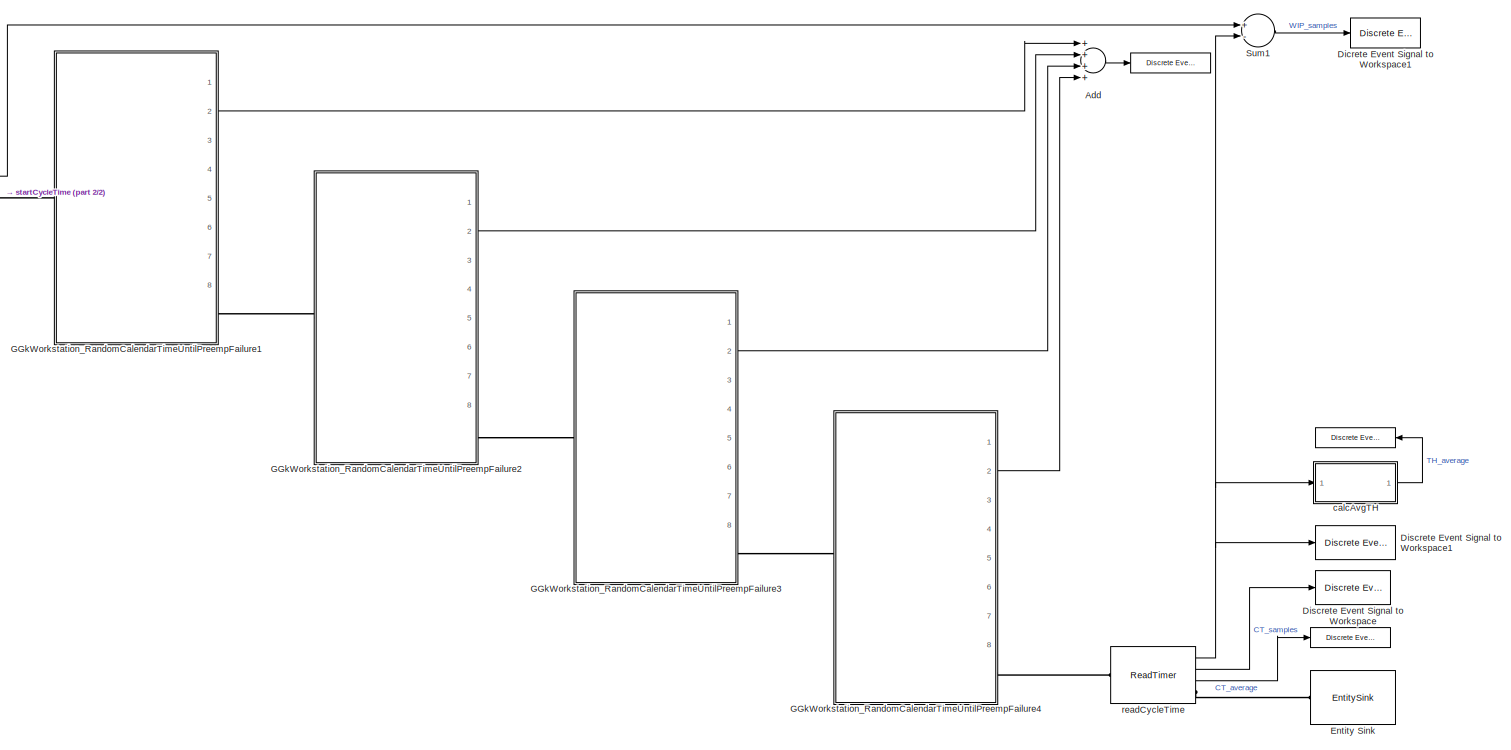
[diagram: root canvas - part 1/2, most of the canvas]
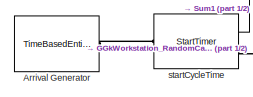
[diagram: root canvas - part 2/2, top left region]
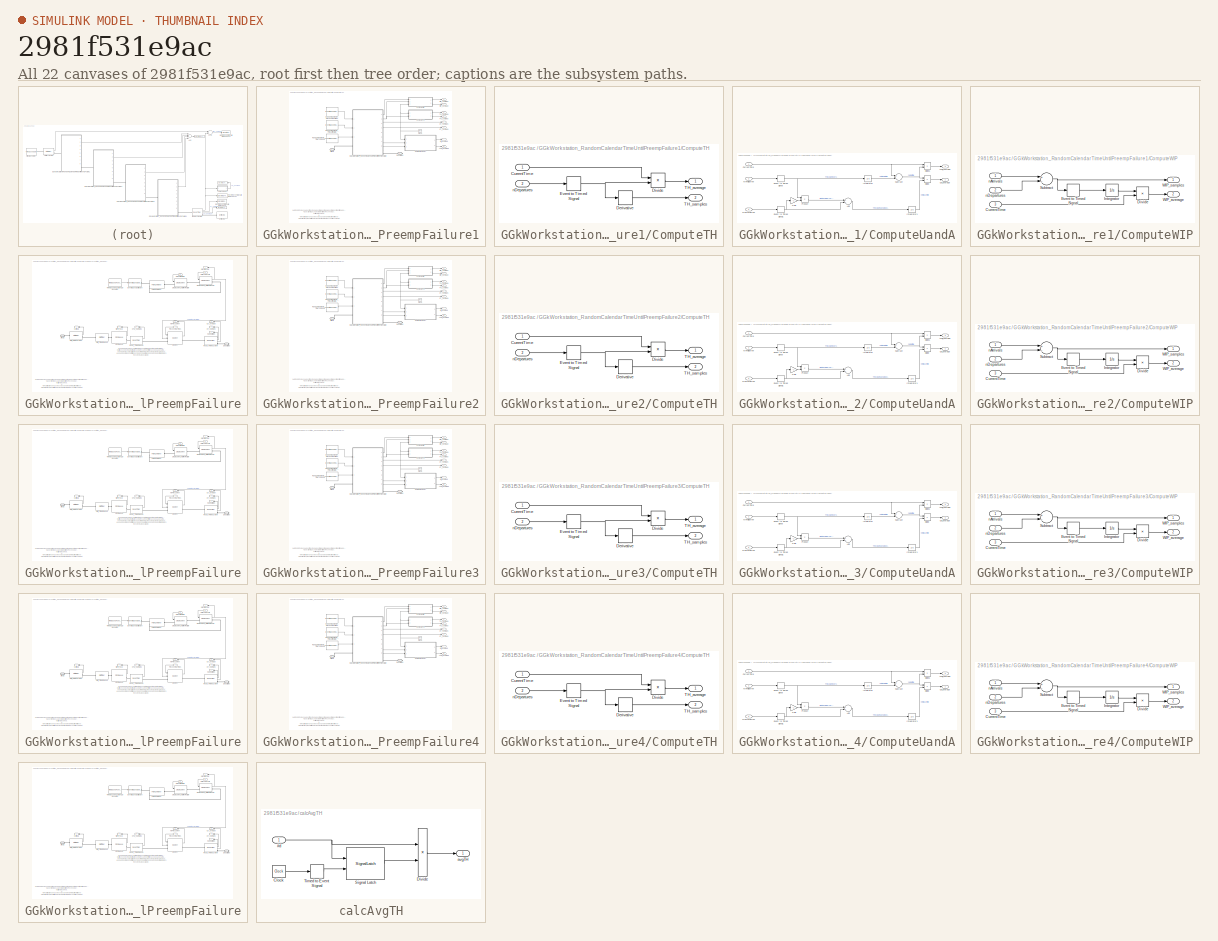
[diagram: thumbnail index - all 22 canvases of the model, root first then tree order]
MODEL slx_2981f531e9ac
KIND model
CONFIG AbsTol = auto
CONFIG FixedStep = auto
CONFIG InitFcn = se_randomizeseeds(gcs, 'Mode', 'All')
CONFIG MaxStep = auto
CONFIG MinStep = auto
CONFIG RelTol = 1e-3
CONFIG SampleTimeConstraint = Unconstrained
CONFIG Solver = ode45
CONFIG SolverMode = SingleTasking
CONFIG SolverName = ode45
CONFIG StartTime = 0.0
CONFIG StopTime = 100000
BLOCK [Reference]    REF=simeventslib/SimEvents
Sinks/Discrete Event Signal
to Workspace
  Decimation = 1
  MaxDataPoints = inf
  Ports = [1]
  SaveFormat = Structure With Time
  SourceBlock = simeventslib/SimEvents\nSinks/Discrete Event Signal\nto Workspace
  SourceType = Discrete Event Signal to Workspace
  VariableName = WIP_average
  isMonitorOnly = off
  isRecordIC = off
BLOCK [Reference]     REF=simeventslib/SimEvents
Sinks/Discrete Event Signal
to Workspace
  Decimation = 1
  MaxDataPoints = inf
  Ports = [1]
  SaveFormat = Structure With Time
  SourceBlock = simeventslib/SimEvents\nSinks/Discrete Event Signal\nto Workspace
  SourceType = Discrete Event Signal to Workspace
  VariableName = CT_average
  isMonitorOnly = off
  isRecordIC = off
BLOCK [Reference]      REF=simeventslib/SimEvents
Sinks/Discrete Event Signal
to Workspace
  Decimation = 1
  MaxDataPoints = inf
  Ports = [1]
  SaveFormat = Structure With Time
  SourceBlock = simeventslib/SimEvents\nSinks/Discrete Event Signal\nto Workspace
  SourceType = Discrete Event Signal to Workspace
  VariableName = TH_average
  isMonitorOnly = off
  isRecordIC = off
BLOCK [Sum] Add
  InputSameDT = off
  Inputs = ++++
  OutDataTypeStr = Inherit: Inherit via internal rule
  Ports = [4, 1]
  SaturateOnIntegerOverflow = off
BLOCK [TimeBasedEntityGenerator] Arrival Generator
  Distribution = Exponential
  InitialSeed = 63378
  Maximum = 9
  Mean = 1/0.2
  Minimum = 1
  Ports = [0, 0, 0, 0, 0, 0, 1]
BLOCK [Reference] Dicrete Event Signal to Workspace1  REF=simeventslib/SimEvents
Sinks/Discrete Event Signal
to Workspace
  Decimation = 1
  MaxDataPoints = inf
  Ports = [1]
  SaveFormat = Structure With Time
  SourceBlock = simeventslib/SimEvents\nSinks/Discrete Event Signal\nto Workspace
  SourceType = Discrete Event Signal to Workspace
  VariableName = WIP
  isMonitorOnly = off
  isRecordIC = off
BLOCK [Reference] Discrete Event Signal to Workspace  REF=simeventslib/SimEvents
Sinks/Discrete Event Signal
to Workspace
  Decimation = 1
  MaxDataPoints = inf
  Ports = [1]
  SaveFormat = Structure With Time
  SourceBlock = simeventslib/SimEvents\nSinks/Discrete Event Signal\nto Workspace
  SourceType = Discrete Event Signal to Workspace
  VariableName = CycleTime
  isMonitorOnly = off
  isRecordIC = off
BLOCK [Reference] Discrete Event Signal to Workspace1  REF=simeventslib/SimEvents
Sinks/Discrete Event Signal
to Workspace
  Decimation = 1
  MaxDataPoints = inf
  Ports = [1]
  SaveFormat = Structure With Time
  SourceBlock = simeventslib/SimEvents\nSinks/Discrete Event Signal\nto Workspace
  SourceType = Discrete Event Signal to Workspace
  VariableName = Departures
  isMonitorOnly = off
  isRecordIC = off
BLOCK [EntitySink] Entity Sink
  Ports = [0, 0, 0, 0, 0, 1]
BLOCK [SubSystem] GGkWorkstation_RandomCalendarTimeUntilPreempFailure1
  CopyFcn = set_param(gcb, 'LinkStatus', 'none');
  InitFcn = se_randomizeseeds(gcs, 'Mode', 'All')
  Ports = [0, 8, 0, 0, 0, 1, 1]
  RequestExecContextInheritance = off
BLOCK [PMIOPort] GGkWorkstation_RandomCalendarTimeUntilPreempFailure1/Arrivals
  Port = 1
  Side = Left
BLOCK [Outport] GGkWorkstation_RandomCalendarTimeUntilPreempFailure1/Avail_average
  IconDisplay = Port number
  Port = 8
BLOCK [Outport] GGkWorkstation_RandomCalendarTimeUntilPreempFailure1/CT_average
  IconDisplay = Port number
  Port = 4
BLOCK [Outport] GGkWorkstation_RandomCalendarTimeUntilPreempFailure1/CT_samples
  IconDisplay = Port number
  Port = 3
BLOCK [Clock] GGkWorkstation_RandomCalendarTimeUntilPreempFailure1/Clock
BLOCK [SubSystem] GGkWorkstation_RandomCalendarTimeUntilPreempFailure1/ComputeTH
  Ports = [2, 2]
  RequestExecContextInheritance = off
BLOCK [Inport] GGkWorkstation_RandomCalendarTimeUntilPreempFailure1/ComputeTH/CurrentTime
  IconDisplay = Port number
BLOCK [Derivative] GGkWorkstation_RandomCalendarTimeUntilPreempFailure1/ComputeTH/Derivative
BLOCK [Product] GGkWorkstation_RandomCalendarTimeUntilPreempFailure1/ComputeTH/Divide
  InputSameDT = off
  Inputs = /*
  OutDataTypeStr = Inherit: Inherit via internal rule
  Ports = [2, 1]
  RndMeth = Floor
  SaturateOnIntegerOverflow = off
BLOCK [EventToTimedSignal] GGkWorkstation_RandomCalendarTimeUntilPreempFailure1/ComputeTH/Event to Timed Signal
  InputPortMap = u0
  OutputPortMap = o0
  Ports = [1, 1]
BLOCK [Outport] GGkWorkstation_RandomCalendarTimeUntilPreempFailure1/ComputeTH/TH_average
  IconDisplay = Port number
BLOCK [Outport] GGkWorkstation_RandomCalendarTimeUntilPreempFailure1/ComputeTH/TH_samples
  IconDisplay = Port number
  Port = 2
BLOCK [Inport] GGkWorkstation_RandomCalendarTimeUntilPreempFailure1/ComputeTH/nDepartures
  IconDisplay = Port number
  Port = 2
BLOCK [SubSystem] GGkWorkstation_RandomCalendarTimeUntilPreempFailure1/ComputeUandA
  Ports = [3, 2]
  RequestExecContextInheritance = off
BLOCK [Sum] GGkWorkstation_RandomCalendarTimeUntilPreempFailure1/ComputeUandA/Add
  InputSameDT = off
  OutDataTypeStr = Inherit: Inherit via internal rule
  Ports = [2, 1]
  SaturateOnIntegerOverflow = off
BLOCK [Outport] GGkWorkstation_RandomCalendarTimeUntilPreempFailure1/ComputeUandA/Avail_average
  IconDisplay = Port number
  Port = 2
BLOCK [Inport] GGkWorkstation_RandomCalendarTimeUntilPreempFailure1/ComputeUandA/CurrentTime
  IconDisplay = Port number
BLOCK [Product] GGkWorkstation_RandomCalendarTimeUntilPreempFailure1/ComputeUandA/Divide
  InputSameDT = off
  Inputs = /*
  OutDataTypeStr = Inherit: Inherit via internal rule
  Ports = [2, 1]
  RndMeth = Floor
  SaturateOnIntegerOverflow = off
BLOCK [Product] GGkWorkstation_RandomCalendarTimeUntilPreempFailure1/ComputeUandA/Divide1
  InputSameDT = off
  Inputs = /*
  OutDataTypeStr = Inherit: Inherit via internal rule
  Ports = [2, 1]
  RndMeth = Floor
  SaturateOnIntegerOverflow = off
BLOCK [EventToTimedSignal] GGkWorkstation_RandomCalendarTimeUntilPreempFailure1/ComputeUandA/Event to Timed Signal
  InputPortMap = u0
  OutputPortMap = o0
  Ports = [1, 1]
BLOCK [EventToTimedSignal] GGkWorkstation_RandomCalendarTimeUntilPreempFailure1/ComputeUandA/Event to Timed Signal1
  InputPortMap = u0
  OutputPortMap = o0
  Ports = [1, 1]
BLOCK [Gain] GGkWorkstation_RandomCalendarTimeUntilPreempFailure1/ComputeUandA/Gain
  Gain = -1
  OutDataTypeStr = Inherit: Inherit via internal rule
  ParamDataTypeStr = Inherit: Inherit via internal rule
  SaturateOnIntegerOverflow = off
BLOCK [Integrator] GGkWorkstation_RandomCalendarTimeUntilPreempFailure1/ComputeUandA/Integrator
  Ports = [1, 1]
BLOCK [Integrator] GGkWorkstation_RandomCalendarTimeUntilPreempFailure1/ComputeUandA/Integrator1
  Ports = [1, 1]
BLOCK [Product] GGkWorkstation_RandomCalendarTimeUntilPreempFailure1/ComputeUandA/Product
  InputSameDT = off
  OutDataTypeStr = Inherit: Inherit via internal rule
  Ports = [2, 1]
  RndMeth = Floor
  SaturateOnIntegerOverflow = off
BLOCK [Sum] GGkWorkstation_RandomCalendarTimeUntilPreempFailure1/ComputeUandA/Subtract
  InputSameDT = off
  Inputs = +-
  OutDataTypeStr = Inherit: Inherit via internal rule
  Ports = [2, 1]
  SaturateOnIntegerOverflow = off
BLOCK [Outport] GGkWorkstation_RandomCalendarTimeUntilPreempFailure1/ComputeUandA/Util_average
  IconDisplay = Port number
BLOCK [Inport] GGkWorkstation_RandomCalendarTimeUntilPreempFailure1/ComputeUandA/nInFailServer
  IconDisplay = Port number
  Port = 2
BLOCK [Inport] GGkWorkstation_RandomCalendarTimeUntilPreempFailure1/ComputeUandA/nInProcServer
  IconDisplay = Port number
  Port = 3
BLOCK [SubSystem] GGkWorkstation_RandomCalendarTimeUntilPreempFailure1/ComputeWIP
  Ports = [3, 2]
  RequestExecContextInheritance = off
BLOCK [Inport] GGkWorkstation_RandomCalendarTimeUntilPreempFailure1/ComputeWIP/CurrentTime
  IconDisplay = Port number
  Port = 3
BLOCK [Product] GGkWorkstation_RandomCalendarTimeUntilPreempFailure1/ComputeWIP/Divide
  InputSameDT = off
  Inputs = */
  OutDataTypeStr = Inherit: Inherit via internal rule
  Ports = [2, 1]
  RndMeth = Floor
  SaturateOnIntegerOverflow = off
BLOCK [EventToTimedSignal] GGkWorkstation_RandomCalendarTimeUntilPreempFailure1/ComputeWIP/Event to Timed Signal
  InputPortMap = u0
  OutputPortMap = o0
  Ports = [1, 1]
BLOCK [Integrator] GGkWorkstation_RandomCalendarTimeUntilPreempFailure1/ComputeWIP/Integrator
  Ports = [1, 1]
BLOCK [Sum] GGkWorkstation_RandomCalendarTimeUntilPreempFailure1/ComputeWIP/Subtract
  InputSameDT = off
  Inputs = +-
  OutDataTypeStr = Inherit: Inherit via internal rule
  Ports = [2, 1]
  SaturateOnIntegerOverflow = off
BLOCK [Outport] GGkWorkstation_RandomCalendarTimeUntilPreempFailure1/ComputeWIP/WIP_average
  IconDisplay = Port number
  Port = 2
BLOCK [Outport] GGkWorkstation_RandomCalendarTimeUntilPreempFailure1/ComputeWIP/WIP_samples
  IconDisplay = Port number
BLOCK [Inport] GGkWorkstation_RandomCalendarTimeUntilPreempFailure1/ComputeWIP/nArrivals
  IconDisplay = Port number
BLOCK [Inport] GGkWorkstation_RandomCalendarTimeUntilPreempFailure1/ComputeWIP/nDepartures
  IconDisplay = Port number
  Port = 2
BLOCK [PMIOPort] GGkWorkstation_RandomCalendarTimeUntilPreempFailure1/Departures
  Port = 2
  Side = Right
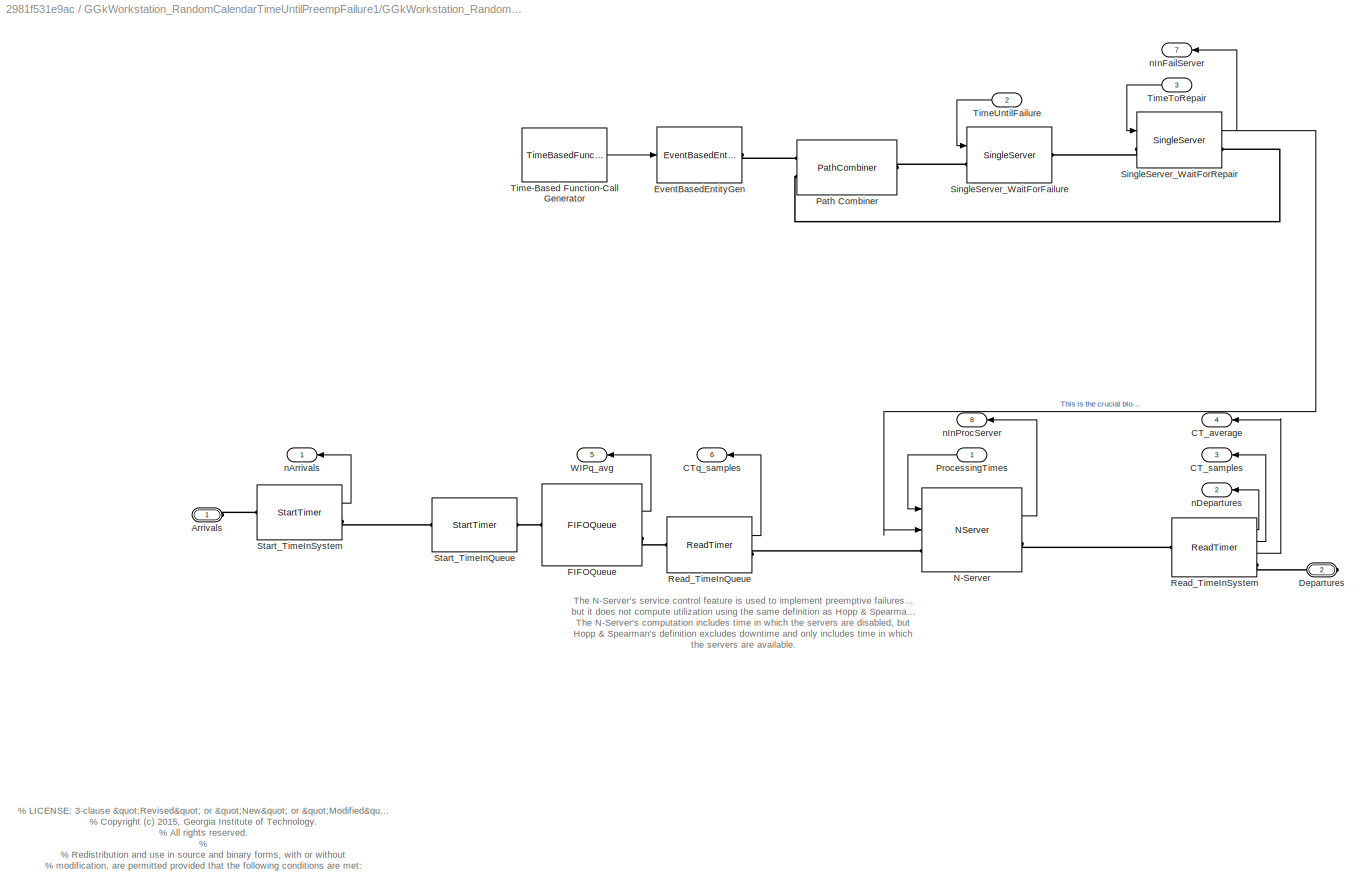
BLOCK [SubSystem] GGkWorkstation_RandomCalendarTimeUntilPreempFailure1/GGkWorkstation_RandomCalendarTimeUntilPreempFailure
  Ports = [3, 8, 0, 0, 0, 1, 1]
  RequestExecContextInheritance = off
BLOCK [PMIOPort] GGkWorkstation_RandomCalendarTimeUntilPreempFailure1/GGkWorkstation_RandomCalendarTimeUntilPreempFailure/Arrivals
  Port = 1
  Side = Left
BLOCK [Outport] GGkWorkstation_RandomCalendarTimeUntilPreempFailure1/GGkWorkstation_RandomCalendarTimeUntilPreempFailure/CT_average
  IconDisplay = Port number
  Port = 4
BLOCK [Outport] GGkWorkstation_RandomCalendarTimeUntilPreempFailure1/GGkWorkstation_RandomCalendarTimeUntilPreempFailure/CT_samples
  IconDisplay = Port number
  Port = 3
BLOCK [Outport] GGkWorkstation_RandomCalendarTimeUntilPreempFailure1/GGkWorkstation_RandomCalendarTimeUntilPreempFailure/CTq_samples
  IconDisplay = Port number
  Port = 6
BLOCK [PMIOPort] GGkWorkstation_RandomCalendarTimeUntilPreempFailure1/GGkWorkstation_RandomCalendarTimeUntilPreempFailure/Departures
  Port = 2
  Side = Right
BLOCK [EventBasedEntityGenerator] GGkWorkstation_RandomCalendarTimeUntilPreempFailure1/GGkWorkstation_RandomCalendarTimeUntilPreempFailure/EventBasedEntityGen
  GenerateEntitiesUpon = Function call from port fcn
  InputPortMap = u0
  Ports = [1, 0, 0, 0, 0, 0, 1]
BLOCK [FIFOQueue] GGkWorkstation_RandomCalendarTimeUntilPreempFailure1/GGkWorkstation_RandomCalendarTimeUntilPreempFailure/FIFOQueue
  Capacity = Capacity
  OutputPortMap = o3
  Ports = [0, 1, 0, 0, 0, 1, 1]
  StatAverageQueueLength = on
BLOCK [NServer] GGkWorkstation_RandomCalendarTimeUntilPreempFailure1/GGkWorkstation_RandomCalendarTimeUntilPreempFailure/N-Server
  AllowServiceControl = on
  AttributeName = ProcTime
  BlockWhileSignalOn = on
  InputPortMap = u0,u1
  NumberOfServers = NumberOfServers
  OutputPortMap = o1
  Ports = [2, 1, 0, 0, 0, 1, 1]
  ServiceTime = 0
  ServiceTimeFrom = Signal port t
  StatNumberInBlock = on
BLOCK [PathCombiner] GGkWorkstation_RandomCalendarTimeUntilPreempFailure1/GGkWorkstation_RandomCalendarTimeUntilPreempFailure/Path Combiner
  NumberInputPorts = 2
  Ports = [0, 0, 0, 0, 0, 2, 1]
BLOCK [Inport] GGkWorkstation_RandomCalendarTimeUntilPreempFailure1/GGkWorkstation_RandomCalendarTimeUntilPreempFailure/ProcessingTimes
  IconDisplay = Port number
BLOCK [ReadTimer] GGkWorkstation_RandomCalendarTimeUntilPreempFailure1/GGkWorkstation_RandomCalendarTimeUntilPreempFailure/Read_TimeInQueue
  OutputPortMap = o2
  Ports = [0, 1, 0, 0, 0, 1, 1]
  StatTimeElapsed = on
  TimerTag = TimeInQueue
BLOCK [ReadTimer] GGkWorkstation_RandomCalendarTimeUntilPreempFailure1/GGkWorkstation_RandomCalendarTimeUntilPreempFailure/Read_TimeInSystem
  OutputPortMap = o0,o2,o3
  Ports = [0, 3, 0, 0, 0, 1, 1]
  StatAverageTimeElapsed = on
  StatNumberDeparted = on
  StatTimeElapsed = on
  TimerTag = TimeInSystem
BLOCK [SingleServer] GGkWorkstation_RandomCalendarTimeUntilPreempFailure1/GGkWorkstation_RandomCalendarTimeUntilPreempFailure/SingleServer_WaitForFailure
  AttributeName = TimeUntilFailure
  InputPortMap = u0
  Ports = [1, 0, 0, 0, 0, 1, 1]
  ServiceTimeFrom = Signal port t
BLOCK [SingleServer] GGkWorkstation_RandomCalendarTimeUntilPreempFailure1/GGkWorkstation_RandomCalendarTimeUntilPreempFailure/SingleServer_WaitForRepair
  AttributeName = TimeToRepair
  InputPortMap = u0
  OutputPortMap = o1
  Ports = [1, 1, 0, 0, 0, 1, 1]
  ServiceTimeFrom = Signal port t
  StatNumberInBlock = on
BLOCK [StartTimer] GGkWorkstation_RandomCalendarTimeUntilPreempFailure1/GGkWorkstation_RandomCalendarTimeUntilPreempFailure/Start_TimeInQueue
  Ports = [0, 0, 0, 0, 0, 1, 1]
  TimerStartedOption = Restart
  TimerTag = TimeInQueue
BLOCK [StartTimer] GGkWorkstation_RandomCalendarTimeUntilPreempFailure1/GGkWorkstation_RandomCalendarTimeUntilPreempFailure/Start_TimeInSystem
  OutputPortMap = o0
  Ports = [0, 1, 0, 0, 0, 1, 1]
  StatNumberDeparted = on
  TimerStartedOption = Restart
  TimerTag = TimeInSystem
BLOCK [TimeBasedFunctionCallGenerator] GGkWorkstation_RandomCalendarTimeUntilPreempFailure1/GGkWorkstation_RandomCalendarTimeUntilPreempFailure/Time-Based Function-Call Generator
  EventGenerationMode = Only at simulation start
  OutputPortMap = o0
  Ports = [0, 1]
BLOCK [Inport] GGkWorkstation_RandomCalendarTimeUntilPreempFailure1/GGkWorkstation_RandomCalendarTimeUntilPreempFailure/TimeToRepair
  IconDisplay = Port number
  Port = 3
BLOCK [Inport] GGkWorkstation_RandomCalendarTimeUntilPreempFailure1/GGkWorkstation_RandomCalendarTimeUntilPreempFailure/TimeUntilFailure
  IconDisplay = Port number
  Port = 2
BLOCK [Outport] GGkWorkstation_RandomCalendarTimeUntilPreempFailure1/GGkWorkstation_RandomCalendarTimeUntilPreempFailure/WIPq_avg
  IconDisplay = Port number
  Port = 5
BLOCK [Outport] GGkWorkstation_RandomCalendarTimeUntilPreempFailure1/GGkWorkstation_RandomCalendarTimeUntilPreempFailure/nArrivals
  IconDisplay = Port number
BLOCK [Outport] GGkWorkstation_RandomCalendarTimeUntilPreempFailure1/GGkWorkstation_RandomCalendarTimeUntilPreempFailure/nDepartures
  IconDisplay = Port number
  Port = 2
BLOCK [Outport] GGkWorkstation_RandomCalendarTimeUntilPreempFailure1/GGkWorkstation_RandomCalendarTimeUntilPreempFailure/nInFailServer
  IconDisplay = Port number
  Port = 7
BLOCK [Outport] GGkWorkstation_RandomCalendarTimeUntilPreempFailure1/GGkWorkstation_RandomCalendarTimeUntilPreempFailure/nInProcServer
  IconDisplay = Port number
  Port = 8
BLOCK [EventBasedRandomNumber] GGkWorkstation_RandomCalendarTimeUntilPreempFailure1/RandomNumbers_ProcessingTimes
  Distribution = Gaussian (normal)
  OutputPortMap = o0
  Ports = [0, 1]
  Seed = 24774
  cdfVecCont = 40
  maxBeta = 40
  maxTri = 7
  maxUnid = 40
  maxUnif = 40
  meanExp = 4
  meanNorm = 4
  meanPoiss = 40
  minBeta = 40
  minUnid = 40
  minUnif = 40
  modeTri = 4
  numTrialBino = 40
  numValueUnid = 40
  pOneBern = 40
  pSuccessBino = 40
  pSuccessGeo = 40
  probVecDisc = 40
  scaleGam = 40
  scaleLogl = 40
  scaleLogn = 40
  scaleWbl = 40
  shape1Beta = 40
  shape2Beta = 40
  shapeGam = 40
  shapeLogn = 40
  shapeWbl = 40
  stdNorm = eps
  thresholdGam = 40
  thresholdLogl = 40
  thresholdLogn = 40
  thresholdWbl = 40
  valueVecCont = 40
  valueVecDisc = 40
BLOCK [EventBasedRandomNumber] GGkWorkstation_RandomCalendarTimeUntilPreempFailure1/RandomNumbers_TimeToRepair
  Distribution = Gaussian (normal)
  OutputPortMap = o0
  Ports = [0, 1]
  Seed = 27991
  cdfVecCont = 40
  maxBeta = 40
  maxTri = 38
  maxUnid = 40
  maxUnif = 40
  meanExp = 80
  meanNorm = 80
  meanPoiss = 40
  minBeta = 40
  minTri = 38
  minUnid = 40
  minUnif = 40
  modeTri = 38
  numTrialBino = 40
  numValueUnid = 40
  pOneBern = 40
  pSuccessBino = 40
  pSuccessGeo = 40
  probVecDisc = [0 1]
  scaleGam = 20
  scaleLogl = 40
  scaleLogn = 40
  scaleWbl = 40
  shape1Beta = 40
  shape2Beta = 40
  shapeLogn = 40
  shapeWbl = 40
  stdNorm = eps
  thresholdLogl = 40
  thresholdLogn = 40
  thresholdWbl = 40
  valueVecCont = 40
BLOCK [EventBasedRandomNumber] GGkWorkstation_RandomCalendarTimeUntilPreempFailure1/RandomNumbers_TimeUntilFailure
  Distribution = Gaussian (normal)
  OutputPortMap = o0
  Ports = [0, 1]
  Seed = 31208
  cdfVecCont = 40
  maxBeta = 40
  maxTri = 114
  maxUnid = 40
  maxUnif = 40
  meanExp = 400
  meanNorm = 400
  meanPoiss = 40
  minBeta = 40
  minTri = 114
  minUnid = 40
  minUnif = 40
  modeTri = 114
  numTrialBino = 40
  numValueUnid = 40
  pOneBern = 40
  pSuccessBino = 40
  pSuccessGeo = 40
  probVecDisc = 40
  scaleGam = 166.6667
  scaleLogl = 40
  scaleLogn = 40
  scaleWbl = 40
  shape1Beta = 40
  shape2Beta = 40
  shapeGam = 0.72
  shapeLogn = 40
  shapeWbl = 40
  stdNorm = eps
  thresholdLogl = 40
  thresholdLogn = 40
  thresholdWbl = 40
  valueVecCont = 40
  valueVecDisc = 40
BLOCK [Outport] GGkWorkstation_RandomCalendarTimeUntilPreempFailure1/TH_average
  IconDisplay = Port number
  Port = 6
BLOCK [Outport] GGkWorkstation_RandomCalendarTimeUntilPreempFailure1/TH_samples
  IconDisplay = Port number
  Port = 5
BLOCK [Outport] GGkWorkstation_RandomCalendarTimeUntilPreempFailure1/Util_average
  IconDisplay = Port number
  Port = 7
BLOCK [Outport] GGkWorkstation_RandomCalendarTimeUntilPreempFailure1/WIP_average
  IconDisplay = Port number
  Port = 2
BLOCK [Outport] GGkWorkstation_RandomCalendarTimeUntilPreempFailure1/WIP_samples
  IconDisplay = Port number
BLOCK [SubSystem] GGkWorkstation_RandomCalendarTimeUntilPreempFailure2
  CopyFcn = set_param(gcb, 'LinkStatus', 'none');
  InitFcn = se_randomizeseeds(gcs, 'Mode', 'All')
  Ports = [0, 8, 0, 0, 0, 1, 1]
  RequestExecContextInheritance = off
BLOCK [PMIOPort] GGkWorkstation_RandomCalendarTimeUntilPreempFailure2/Arrivals
  Port = 1
  Side = Left
BLOCK [Outport] GGkWorkstation_RandomCalendarTimeUntilPreempFailure2/Avail_average
  IconDisplay = Port number
  Port = 8
BLOCK [Outport] GGkWorkstation_RandomCalendarTimeUntilPreempFailure2/CT_average
  IconDisplay = Port number
  Port = 4
BLOCK [Outport] GGkWorkstation_RandomCalendarTimeUntilPreempFailure2/CT_samples
  IconDisplay = Port number
  Port = 3
BLOCK [Clock] GGkWorkstation_RandomCalendarTimeUntilPreempFailure2/Clock
BLOCK [SubSystem] GGkWorkstation_RandomCalendarTimeUntilPreempFailure2/ComputeTH
  Ports = [2, 2]
  RequestExecContextInheritance = off
BLOCK [Inport] GGkWorkstation_RandomCalendarTimeUntilPreempFailure2/ComputeTH/CurrentTime
  IconDisplay = Port number
BLOCK [Derivative] GGkWorkstation_RandomCalendarTimeUntilPreempFailure2/ComputeTH/Derivative
BLOCK [Product] GGkWorkstation_RandomCalendarTimeUntilPreempFailure2/ComputeTH/Divide
  InputSameDT = off
  Inputs = /*
  OutDataTypeStr = Inherit: Inherit via internal rule
  Ports = [2, 1]
  RndMeth = Floor
  SaturateOnIntegerOverflow = off
BLOCK [EventToTimedSignal] GGkWorkstation_RandomCalendarTimeUntilPreempFailure2/ComputeTH/Event to Timed Signal
  InputPortMap = u0
  OutputPortMap = o0
  Ports = [1, 1]
BLOCK [Outport] GGkWorkstation_RandomCalendarTimeUntilPreempFailure2/ComputeTH/TH_average
  IconDisplay = Port number
BLOCK [Outport] GGkWorkstation_RandomCalendarTimeUntilPreempFailure2/ComputeTH/TH_samples
  IconDisplay = Port number
  Port = 2
BLOCK [Inport] GGkWorkstation_RandomCalendarTimeUntilPreempFailure2/ComputeTH/nDepartures
  IconDisplay = Port number
  Port = 2
BLOCK [SubSystem] GGkWorkstation_RandomCalendarTimeUntilPreempFailure2/ComputeUandA
  Ports = [3, 2]
  RequestExecContextInheritance = off
BLOCK [Sum] GGkWorkstation_RandomCalendarTimeUntilPreempFailure2/ComputeUandA/Add
  InputSameDT = off
  OutDataTypeStr = Inherit: Inherit via internal rule
  Ports = [2, 1]
  SaturateOnIntegerOverflow = off
BLOCK [Outport] GGkWorkstation_RandomCalendarTimeUntilPreempFailure2/ComputeUandA/Avail_average
  IconDisplay = Port number
  Port = 2
BLOCK [Inport] GGkWorkstation_RandomCalendarTimeUntilPreempFailure2/ComputeUandA/CurrentTime
  IconDisplay = Port number
BLOCK [Product] GGkWorkstation_RandomCalendarTimeUntilPreempFailure2/ComputeUandA/Divide
  InputSameDT = off
  Inputs = /*
  OutDataTypeStr = Inherit: Inherit via internal rule
  Ports = [2, 1]
  RndMeth = Floor
  SaturateOnIntegerOverflow = off
BLOCK [Product] GGkWorkstation_RandomCalendarTimeUntilPreempFailure2/ComputeUandA/Divide1
  InputSameDT = off
  Inputs = /*
  OutDataTypeStr = Inherit: Inherit via internal rule
  Ports = [2, 1]
  RndMeth = Floor
  SaturateOnIntegerOverflow = off
BLOCK [EventToTimedSignal] GGkWorkstation_RandomCalendarTimeUntilPreempFailure2/ComputeUandA/Event to Timed Signal
  InputPortMap = u0
  OutputPortMap = o0
  Ports = [1, 1]
BLOCK [EventToTimedSignal] GGkWorkstation_RandomCalendarTimeUntilPreempFailure2/ComputeUandA/Event to Timed Signal1
  InputPortMap = u0
  OutputPortMap = o0
  Ports = [1, 1]
BLOCK [Gain] GGkWorkstation_RandomCalendarTimeUntilPreempFailure2/ComputeUandA/Gain
  Gain = -1
  OutDataTypeStr = Inherit: Inherit via internal rule
  ParamDataTypeStr = Inherit: Inherit via internal rule
  SaturateOnIntegerOverflow = off
BLOCK [Integrator] GGkWorkstation_RandomCalendarTimeUntilPreempFailure2/ComputeUandA/Integrator
  Ports = [1, 1]
BLOCK [Integrator] GGkWorkstation_RandomCalendarTimeUntilPreempFailure2/ComputeUandA/Integrator1
  Ports = [1, 1]
BLOCK [Product] GGkWorkstation_RandomCalendarTimeUntilPreempFailure2/ComputeUandA/Product
  InputSameDT = off
  OutDataTypeStr = Inherit: Inherit via internal rule
  Ports = [2, 1]
  RndMeth = Floor
  SaturateOnIntegerOverflow = off
BLOCK [Sum] GGkWorkstation_RandomCalendarTimeUntilPreempFailure2/ComputeUandA/Subtract
  InputSameDT = off
  Inputs = +-
  OutDataTypeStr = Inherit: Inherit via internal rule
  Ports = [2, 1]
  SaturateOnIntegerOverflow = off
BLOCK [Outport] GGkWorkstation_RandomCalendarTimeUntilPreempFailure2/ComputeUandA/Util_average
  IconDisplay = Port number
BLOCK [Inport] GGkWorkstation_RandomCalendarTimeUntilPreempFailure2/ComputeUandA/nInFailServer
  IconDisplay = Port number
  Port = 2
BLOCK [Inport] GGkWorkstation_RandomCalendarTimeUntilPreempFailure2/ComputeUandA/nInProcServer
  IconDisplay = Port number
  Port = 3
BLOCK [SubSystem] GGkWorkstation_RandomCalendarTimeUntilPreempFailure2/ComputeWIP
  Ports = [3, 2]
  RequestExecContextInheritance = off
BLOCK [Inport] GGkWorkstation_RandomCalendarTimeUntilPreempFailure2/ComputeWIP/CurrentTime
  IconDisplay = Port number
  Port = 3
BLOCK [Product] GGkWorkstation_RandomCalendarTimeUntilPreempFailure2/ComputeWIP/Divide
  InputSameDT = off
  Inputs = */
  OutDataTypeStr = Inherit: Inherit via internal rule
  Ports = [2, 1]
  RndMeth = Floor
  SaturateOnIntegerOverflow = off
BLOCK [EventToTimedSignal] GGkWorkstation_RandomCalendarTimeUntilPreempFailure2/ComputeWIP/Event to Timed Signal
  InputPortMap = u0
  OutputPortMap = o0
  Ports = [1, 1]
BLOCK [Integrator] GGkWorkstation_RandomCalendarTimeUntilPreempFailure2/ComputeWIP/Integrator
  Ports = [1, 1]
BLOCK [Sum] GGkWorkstation_RandomCalendarTimeUntilPreempFailure2/ComputeWIP/Subtract
  InputSameDT = off
  Inputs = +-
  OutDataTypeStr = Inherit: Inherit via internal rule
  Ports = [2, 1]
  SaturateOnIntegerOverflow = off
BLOCK [Outport] GGkWorkstation_RandomCalendarTimeUntilPreempFailure2/ComputeWIP/WIP_average
  IconDisplay = Port number
  Port = 2
BLOCK [Outport] GGkWorkstation_RandomCalendarTimeUntilPreempFailure2/ComputeWIP/WIP_samples
  IconDisplay = Port number
BLOCK [Inport] GGkWorkstation_RandomCalendarTimeUntilPreempFailure2/ComputeWIP/nArrivals
  IconDisplay = Port number
BLOCK [Inport] GGkWorkstation_RandomCalendarTimeUntilPreempFailure2/ComputeWIP/nDepartures
  IconDisplay = Port number
  Port = 2
BLOCK [PMIOPort] GGkWorkstation_RandomCalendarTimeUntilPreempFailure2/Departures
  Port = 2
  Side = Right
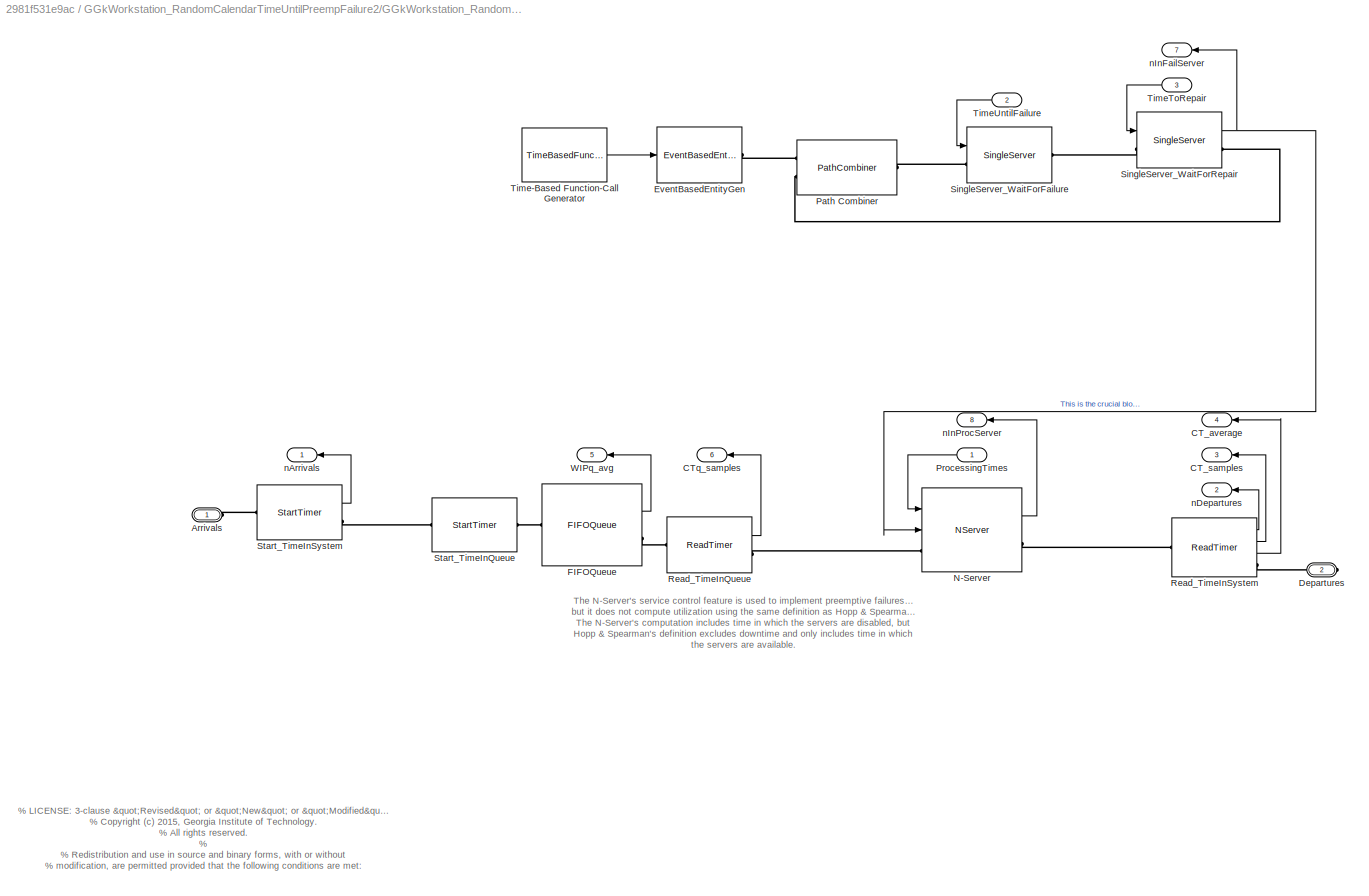
BLOCK [SubSystem] GGkWorkstation_RandomCalendarTimeUntilPreempFailure2/GGkWorkstation_RandomCalendarTimeUntilPreempFailure
  Ports = [3, 8, 0, 0, 0, 1, 1]
  RequestExecContextInheritance = off
BLOCK [PMIOPort] GGkWorkstation_RandomCalendarTimeUntilPreempFailure2/GGkWorkstation_RandomCalendarTimeUntilPreempFailure/Arrivals
  Port = 1
  Side = Left
BLOCK [Outport] GGkWorkstation_RandomCalendarTimeUntilPreempFailure2/GGkWorkstation_RandomCalendarTimeUntilPreempFailure/CT_average
  IconDisplay = Port number
  Port = 4
BLOCK [Outport] GGkWorkstation_RandomCalendarTimeUntilPreempFailure2/GGkWorkstation_RandomCalendarTimeUntilPreempFailure/CT_samples
  IconDisplay = Port number
  Port = 3
BLOCK [Outport] GGkWorkstation_RandomCalendarTimeUntilPreempFailure2/GGkWorkstation_RandomCalendarTimeUntilPreempFailure/CTq_samples
  IconDisplay = Port number
  Port = 6
BLOCK [PMIOPort] GGkWorkstation_RandomCalendarTimeUntilPreempFailure2/GGkWorkstation_RandomCalendarTimeUntilPreempFailure/Departures
  Port = 2
  Side = Right
BLOCK [EventBasedEntityGenerator] GGkWorkstation_RandomCalendarTimeUntilPreempFailure2/GGkWorkstation_RandomCalendarTimeUntilPreempFailure/EventBasedEntityGen
  GenerateEntitiesUpon = Function call from port fcn
  InputPortMap = u0
  Ports = [1, 0, 0, 0, 0, 0, 1]
BLOCK [FIFOQueue] GGkWorkstation_RandomCalendarTimeUntilPreempFailure2/GGkWorkstation_RandomCalendarTimeUntilPreempFailure/FIFOQueue
  Capacity = Capacity
  OutputPortMap = o3
  Ports = [0, 1, 0, 0, 0, 1, 1]
  StatAverageQueueLength = on
BLOCK [NServer] GGkWorkstation_RandomCalendarTimeUntilPreempFailure2/GGkWorkstation_RandomCalendarTimeUntilPreempFailure/N-Server
  AllowServiceControl = on
  AttributeName = ProcTime
  BlockWhileSignalOn = on
  InputPortMap = u0,u1
  NumberOfServers = NumberOfServers
  OutputPortMap = o1
  Ports = [2, 1, 0, 0, 0, 1, 1]
  ServiceTime = 0
  ServiceTimeFrom = Signal port t
  StatNumberInBlock = on
BLOCK [PathCombiner] GGkWorkstation_RandomCalendarTimeUntilPreempFailure2/GGkWorkstation_RandomCalendarTimeUntilPreempFailure/Path Combiner
  NumberInputPorts = 2
  Ports = [0, 0, 0, 0, 0, 2, 1]
BLOCK [Inport] GGkWorkstation_RandomCalendarTimeUntilPreempFailure2/GGkWorkstation_RandomCalendarTimeUntilPreempFailure/ProcessingTimes
  IconDisplay = Port number
BLOCK [ReadTimer] GGkWorkstation_RandomCalendarTimeUntilPreempFailure2/GGkWorkstation_RandomCalendarTimeUntilPreempFailure/Read_TimeInQueue
  OutputPortMap = o2
  Ports = [0, 1, 0, 0, 0, 1, 1]
  StatTimeElapsed = on
  TimerTag = TimeInQueue
BLOCK [ReadTimer] GGkWorkstation_RandomCalendarTimeUntilPreempFailure2/GGkWorkstation_RandomCalendarTimeUntilPreempFailure/Read_TimeInSystem
  OutputPortMap = o0,o2,o3
  Ports = [0, 3, 0, 0, 0, 1, 1]
  StatAverageTimeElapsed = on
  StatNumberDeparted = on
  StatTimeElapsed = on
  TimerTag = TimeInSystem
BLOCK [SingleServer] GGkWorkstation_RandomCalendarTimeUntilPreempFailure2/GGkWorkstation_RandomCalendarTimeUntilPreempFailure/SingleServer_WaitForFailure
  AttributeName = TimeUntilFailure
  InputPortMap = u0
  Ports = [1, 0, 0, 0, 0, 1, 1]
  ServiceTimeFrom = Signal port t
BLOCK [SingleServer] GGkWorkstation_RandomCalendarTimeUntilPreempFailure2/GGkWorkstation_RandomCalendarTimeUntilPreempFailure/SingleServer_WaitForRepair
  AttributeName = TimeToRepair
  InputPortMap = u0
  OutputPortMap = o1
  Ports = [1, 1, 0, 0, 0, 1, 1]
  ServiceTimeFrom = Signal port t
  StatNumberInBlock = on
BLOCK [StartTimer] GGkWorkstation_RandomCalendarTimeUntilPreempFailure2/GGkWorkstation_RandomCalendarTimeUntilPreempFailure/Start_TimeInQueue
  Ports = [0, 0, 0, 0, 0, 1, 1]
  TimerStartedOption = Restart
  TimerTag = TimeInQueue
BLOCK [StartTimer] GGkWorkstation_RandomCalendarTimeUntilPreempFailure2/GGkWorkstation_RandomCalendarTimeUntilPreempFailure/Start_TimeInSystem
  OutputPortMap = o0
  Ports = [0, 1, 0, 0, 0, 1, 1]
  StatNumberDeparted = on
  TimerStartedOption = Restart
  TimerTag = TimeInSystem
BLOCK [TimeBasedFunctionCallGenerator] GGkWorkstation_RandomCalendarTimeUntilPreempFailure2/GGkWorkstation_RandomCalendarTimeUntilPreempFailure/Time-Based Function-Call Generator
  EventGenerationMode = Only at simulation start
  OutputPortMap = o0
  Ports = [0, 1]
BLOCK [Inport] GGkWorkstation_RandomCalendarTimeUntilPreempFailure2/GGkWorkstation_RandomCalendarTimeUntilPreempFailure/TimeToRepair
  IconDisplay = Port number
  Port = 3
BLOCK [Inport] GGkWorkstation_RandomCalendarTimeUntilPreempFailure2/GGkWorkstation_RandomCalendarTimeUntilPreempFailure/TimeUntilFailure
  IconDisplay = Port number
  Port = 2
BLOCK [Outport] GGkWorkstation_RandomCalendarTimeUntilPreempFailure2/GGkWorkstation_RandomCalendarTimeUntilPreempFailure/WIPq_avg
  IconDisplay = Port number
  Port = 5
BLOCK [Outport] GGkWorkstation_RandomCalendarTimeUntilPreempFailure2/GGkWorkstation_RandomCalendarTimeUntilPreempFailure/nArrivals
  IconDisplay = Port number
BLOCK [Outport] GGkWorkstation_RandomCalendarTimeUntilPreempFailure2/GGkWorkstation_RandomCalendarTimeUntilPreempFailure/nDepartures
  IconDisplay = Port number
  Port = 2
BLOCK [Outport] GGkWorkstation_RandomCalendarTimeUntilPreempFailure2/GGkWorkstation_RandomCalendarTimeUntilPreempFailure/nInFailServer
  IconDisplay = Port number
  Port = 7
BLOCK [Outport] GGkWorkstation_RandomCalendarTimeUntilPreempFailure2/GGkWorkstation_RandomCalendarTimeUntilPreempFailure/nInProcServer
  IconDisplay = Port number
  Port = 8
BLOCK [EventBasedRandomNumber] GGkWorkstation_RandomCalendarTimeUntilPreempFailure2/RandomNumbers_ProcessingTimes
  Distribution = Gaussian (normal)
  OutputPortMap = o0
  Ports = [0, 1]
  Seed = 34425
  cdfVecCont = 40
  maxBeta = 40
  maxTri = 8.43
  maxUnid = 40
  maxUnif = 40
  meanExp = 5
  meanNorm = 5
  meanPoiss = 40
  minBeta = 40
  minUnid = 40
  minUnif = 40
  modeTri = 5.56
  numTrialBino = 40
  numValueUnid = 40
  pOneBern = 40
  pSuccessBino = 40
  pSuccessGeo = 40
  probVecDisc = 40
  scaleGam = 40
  scaleLogl = 40
  scaleLogn = 40
  scaleWbl = 40
  shape1Beta = 40
  shape2Beta = 40
  shapeGam = 40
  shapeLogn = 40
  shapeWbl = 40
  stdNorm = eps
  thresholdGam = 40
  thresholdLogl = 40
  thresholdLogn = 40
  thresholdWbl = 40
  valueVecCont = 40
  valueVecDisc = 40
BLOCK [EventBasedRandomNumber] GGkWorkstation_RandomCalendarTimeUntilPreempFailure2/RandomNumbers_TimeToRepair
  Distribution = Gaussian (normal)
  OutputPortMap = o0
  Ports = [0, 1]
  Seed = 37642
  cdfVecCont = 40
  maxBeta = 40
  maxTri = 38
  maxUnid = 40
  maxUnif = 40
  meanExp = 80
  meanNorm = 80
  meanPoiss = 40
  minBeta = 40
  minTri = 38
  minUnid = 40
  minUnif = 40
  modeTri = 38
  numTrialBino = 40
  numValueUnid = 40
  pOneBern = 40
  pSuccessBino = 40
  pSuccessGeo = 40
  probVecDisc = [0 1]
  scaleGam = 20
  scaleLogl = 40
  scaleLogn = 40
  scaleWbl = 40
  shape1Beta = 40
  shape2Beta = 40
  shapeLogn = 40
  shapeWbl = 40
  stdNorm = eps
  thresholdLogl = 40
  thresholdLogn = 40
  thresholdWbl = 40
  valueVecCont = 40
BLOCK [EventBasedRandomNumber] GGkWorkstation_RandomCalendarTimeUntilPreempFailure2/RandomNumbers_TimeUntilFailure
  Distribution = Gaussian (normal)
  OutputPortMap = o0
  Ports = [0, 1]
  Seed = 40859
  cdfVecCont = 40
  maxBeta = 40
  maxTri = 114
  maxUnid = 40
  maxUnif = 40
  meanExp = 400
  meanNorm = 400
  meanPoiss = 40
  minBeta = 40
  minTri = 114
  minUnid = 40
  minUnif = 40
  modeTri = 114
  numTrialBino = 40
  numValueUnid = 40
  pOneBern = 40
  pSuccessBino = 40
  pSuccessGeo = 40
  probVecDisc = 40
  scaleGam = 166.6667
  scaleLogl = 40
  scaleLogn = 40
  scaleWbl = 40
  shape1Beta = 40
  shape2Beta = 40
  shapeGam = 0.72
  shapeLogn = 40
  shapeWbl = 40
  stdNorm = eps
  thresholdLogl = 40
  thresholdLogn = 40
  thresholdWbl = 40
  valueVecCont = 40
  valueVecDisc = 40
BLOCK [Outport] GGkWorkstation_RandomCalendarTimeUntilPreempFailure2/TH_average
  IconDisplay = Port number
  Port = 6
BLOCK [Outport] GGkWorkstation_RandomCalendarTimeUntilPreempFailure2/TH_samples
  IconDisplay = Port number
  Port = 5
BLOCK [Outport] GGkWorkstation_RandomCalendarTimeUntilPreempFailure2/Util_average
  IconDisplay = Port number
  Port = 7
BLOCK [Outport] GGkWorkstation_RandomCalendarTimeUntilPreempFailure2/WIP_average
  IconDisplay = Port number
  Port = 2
BLOCK [Outport] GGkWorkstation_RandomCalendarTimeUntilPreempFailure2/WIP_samples
  IconDisplay = Port number
BLOCK [SubSystem] GGkWorkstation_RandomCalendarTimeUntilPreempFailure3
  CopyFcn = set_param(gcb, 'LinkStatus', 'none');
  InitFcn = se_randomizeseeds(gcs, 'Mode', 'All')
  Ports = [0, 8, 0, 0, 0, 1, 1]
  RequestExecContextInheritance = off
BLOCK [PMIOPort] GGkWorkstation_RandomCalendarTimeUntilPreempFailure3/Arrivals
  Port = 1
  Side = Left
BLOCK [Outport] GGkWorkstation_RandomCalendarTimeUntilPreempFailure3/Avail_average
  IconDisplay = Port number
  Port = 8
BLOCK [Outport] GGkWorkstation_RandomCalendarTimeUntilPreempFailure3/CT_average
  IconDisplay = Port number
  Port = 4
BLOCK [Outport] GGkWorkstation_RandomCalendarTimeUntilPreempFailure3/CT_samples
  IconDisplay = Port number
  Port = 3
BLOCK [Clock] GGkWorkstation_RandomCalendarTimeUntilPreempFailure3/Clock
BLOCK [SubSystem] GGkWorkstation_RandomCalendarTimeUntilPreempFailure3/ComputeTH
  Ports = [2, 2]
  RequestExecContextInheritance = off
BLOCK [Inport] GGkWorkstation_RandomCalendarTimeUntilPreempFailure3/ComputeTH/CurrentTime
  IconDisplay = Port number
BLOCK [Derivative] GGkWorkstation_RandomCalendarTimeUntilPreempFailure3/ComputeTH/Derivative
BLOCK [Product] GGkWorkstation_RandomCalendarTimeUntilPreempFailure3/ComputeTH/Divide
  InputSameDT = off
  Inputs = /*
  OutDataTypeStr = Inherit: Inherit via internal rule
  Ports = [2, 1]
  RndMeth = Floor
  SaturateOnIntegerOverflow = off
BLOCK [EventToTimedSignal] GGkWorkstation_RandomCalendarTimeUntilPreempFailure3/ComputeTH/Event to Timed Signal
  InputPortMap = u0
  OutputPortMap = o0
  Ports = [1, 1]
BLOCK [Outport] GGkWorkstation_RandomCalendarTimeUntilPreempFailure3/ComputeTH/TH_average
  IconDisplay = Port number
BLOCK [Outport] GGkWorkstation_RandomCalendarTimeUntilPreempFailure3/ComputeTH/TH_samples
  IconDisplay = Port number
  Port = 2
BLOCK [Inport] GGkWorkstation_RandomCalendarTimeUntilPreempFailure3/ComputeTH/nDepartures
  IconDisplay = Port number
  Port = 2
BLOCK [SubSystem] GGkWorkstation_RandomCalendarTimeUntilPreempFailure3/ComputeUandA
  Ports = [3, 2]
  RequestExecContextInheritance = off
BLOCK [Sum] GGkWorkstation_RandomCalendarTimeUntilPreempFailure3/ComputeUandA/Add
  InputSameDT = off
  OutDataTypeStr = Inherit: Inherit via internal rule
  Ports = [2, 1]
  SaturateOnIntegerOverflow = off
BLOCK [Outport] GGkWorkstation_RandomCalendarTimeUntilPreempFailure3/ComputeUandA/Avail_average
  IconDisplay = Port number
  Port = 2
BLOCK [Inport] GGkWorkstation_RandomCalendarTimeUntilPreempFailure3/ComputeUandA/CurrentTime
  IconDisplay = Port number
BLOCK [Product] GGkWorkstation_RandomCalendarTimeUntilPreempFailure3/ComputeUandA/Divide
  InputSameDT = off
  Inputs = /*
  OutDataTypeStr = Inherit: Inherit via internal rule
  Ports = [2, 1]
  RndMeth = Floor
  SaturateOnIntegerOverflow = off
BLOCK [Product] GGkWorkstation_RandomCalendarTimeUntilPreempFailure3/ComputeUandA/Divide1
  InputSameDT = off
  Inputs = /*
  OutDataTypeStr = Inherit: Inherit via internal rule
  Ports = [2, 1]
  RndMeth = Floor
  SaturateOnIntegerOverflow = off
BLOCK [EventToTimedSignal] GGkWorkstation_RandomCalendarTimeUntilPreempFailure3/ComputeUandA/Event to Timed Signal
  InputPortMap = u0
  OutputPortMap = o0
  Ports = [1, 1]
BLOCK [EventToTimedSignal] GGkWorkstation_RandomCalendarTimeUntilPreempFailure3/ComputeUandA/Event to Timed Signal1
  InputPortMap = u0
  OutputPortMap = o0
  Ports = [1, 1]
BLOCK [Gain] GGkWorkstation_RandomCalendarTimeUntilPreempFailure3/ComputeUandA/Gain
  Gain = -1
  OutDataTypeStr = Inherit: Inherit via internal rule
  ParamDataTypeStr = Inherit: Inherit via internal rule
  SaturateOnIntegerOverflow = off
BLOCK [Integrator] GGkWorkstation_RandomCalendarTimeUntilPreempFailure3/ComputeUandA/Integrator
  Ports = [1, 1]
BLOCK [Integrator] GGkWorkstation_RandomCalendarTimeUntilPreempFailure3/ComputeUandA/Integrator1
  Ports = [1, 1]
BLOCK [Product] GGkWorkstation_RandomCalendarTimeUntilPreempFailure3/ComputeUandA/Product
  InputSameDT = off
  OutDataTypeStr = Inherit: Inherit via internal rule
  Ports = [2, 1]
  RndMeth = Floor
  SaturateOnIntegerOverflow = off
BLOCK [Sum] GGkWorkstation_RandomCalendarTimeUntilPreempFailure3/ComputeUandA/Subtract
  InputSameDT = off
  Inputs = +-
  OutDataTypeStr = Inherit: Inherit via internal rule
  Ports = [2, 1]
  SaturateOnIntegerOverflow = off
BLOCK [Outport] GGkWorkstation_RandomCalendarTimeUntilPreempFailure3/ComputeUandA/Util_average
  IconDisplay = Port number
BLOCK [Inport] GGkWorkstation_RandomCalendarTimeUntilPreempFailure3/ComputeUandA/nInFailServer
  IconDisplay = Port number
  Port = 2
BLOCK [Inport] GGkWorkstation_RandomCalendarTimeUntilPreempFailure3/ComputeUandA/nInProcServer
  IconDisplay = Port number
  Port = 3
BLOCK [SubSystem] GGkWorkstation_RandomCalendarTimeUntilPreempFailure3/ComputeWIP
  Ports = [3, 2]
  RequestExecContextInheritance = off
BLOCK [Inport] GGkWorkstation_RandomCalendarTimeUntilPreempFailure3/ComputeWIP/CurrentTime
  IconDisplay = Port number
  Port = 3
BLOCK [Product] GGkWorkstation_RandomCalendarTimeUntilPreempFailure3/ComputeWIP/Divide
  InputSameDT = off
  Inputs = */
  OutDataTypeStr = Inherit: Inherit via internal rule
  Ports = [2, 1]
  RndMeth = Floor
  SaturateOnIntegerOverflow = off
BLOCK [EventToTimedSignal] GGkWorkstation_RandomCalendarTimeUntilPreempFailure3/ComputeWIP/Event to Timed Signal
  InputPortMap = u0
  OutputPortMap = o0
  Ports = [1, 1]
BLOCK [Integrator] GGkWorkstation_RandomCalendarTimeUntilPreempFailure3/ComputeWIP/Integrator
  Ports = [1, 1]
BLOCK [Sum] GGkWorkstation_RandomCalendarTimeUntilPreempFailure3/ComputeWIP/Subtract
  InputSameDT = off
  Inputs = +-
  OutDataTypeStr = Inherit: Inherit via internal rule
  Ports = [2, 1]
  SaturateOnIntegerOverflow = off
BLOCK [Outport] GGkWorkstation_RandomCalendarTimeUntilPreempFailure3/ComputeWIP/WIP_average
  IconDisplay = Port number
  Port = 2
BLOCK [Outport] GGkWorkstation_RandomCalendarTimeUntilPreempFailure3/ComputeWIP/WIP_samples
  IconDisplay = Port number
BLOCK [Inport] GGkWorkstation_RandomCalendarTimeUntilPreempFailure3/ComputeWIP/nArrivals
  IconDisplay = Port number
BLOCK [Inport] GGkWorkstation_RandomCalendarTimeUntilPreempFailure3/ComputeWIP/nDepartures
  IconDisplay = Port number
  Port = 2
BLOCK [PMIOPort] GGkWorkstation_RandomCalendarTimeUntilPreempFailure3/Departures
  Port = 2
  Side = Right
BLOCK [SubSystem] GGkWorkstation_RandomCalendarTimeUntilPreempFailure3/GGkWorkstation_RandomCalendarTimeUntilPreempFailure
  Ports = [3, 8, 0, 0, 0, 1, 1]
  RequestExecContextInheritance = off
BLOCK [PMIOPort] GGkWorkstation_RandomCalendarTimeUntilPreempFailure3/GGkWorkstation_RandomCalendarTimeUntilPreempFailure/Arrivals
  Port = 1
  Side = Left
BLOCK [Outport] GGkWorkstation_RandomCalendarTimeUntilPreempFailure3/GGkWorkstation_RandomCalendarTimeUntilPreempFailure/CT_average
  IconDisplay = Port number
  Port = 4
BLOCK [Outport] GGkWorkstation_RandomCalendarTimeUntilPreempFailure3/GGkWorkstation_RandomCalendarTimeUntilPreempFailure/CT_samples
  IconDisplay = Port number
  Port = 3
BLOCK [Outport] GGkWorkstation_RandomCalendarTimeUntilPreempFailure3/GGkWorkstation_RandomCalendarTimeUntilPreempFailure/CTq_samples
  IconDisplay = Port number
  Port = 6
BLOCK [PMIOPort] GGkWorkstation_RandomCalendarTimeUntilPreempFailure3/GGkWorkstation_RandomCalendarTimeUntilPreempFailure/Departures
  Port = 2
  Side = Right
BLOCK [EventBasedEntityGenerator] GGkWorkstation_RandomCalendarTimeUntilPreempFailure3/GGkWorkstation_RandomCalendarTimeUntilPreempFailure/EventBasedEntityGen
  GenerateEntitiesUpon = Function call from port fcn
  InputPortMap = u0
  Ports = [1, 0, 0, 0, 0, 0, 1]
BLOCK [FIFOQueue] GGkWorkstation_RandomCalendarTimeUntilPreempFailure3/GGkWorkstation_RandomCalendarTimeUntilPreempFailure/FIFOQueue
  Capacity = Capacity
  OutputPortMap = o3
  Ports = [0, 1, 0, 0, 0, 1, 1]
  StatAverageQueueLength = on
BLOCK [NServer] GGkWorkstation_RandomCalendarTimeUntilPreempFailure3/GGkWorkstation_RandomCalendarTimeUntilPreempFailure/N-Server
  AllowServiceControl = on
  AttributeName = ProcTime
  BlockWhileSignalOn = on
  InputPortMap = u0,u1
  NumberOfServers = NumberOfServers
  OutputPortMap = o1
  Ports = [2, 1, 0, 0, 0, 1, 1]
  ServiceTime = 0
  ServiceTimeFrom = Signal port t
  StatNumberInBlock = on
BLOCK [PathCombiner] GGkWorkstation_RandomCalendarTimeUntilPreempFailure3/GGkWorkstation_RandomCalendarTimeUntilPreempFailure/Path Combiner
  NumberInputPorts = 2
  Ports = [0, 0, 0, 0, 0, 2, 1]
BLOCK [Inport] GGkWorkstation_RandomCalendarTimeUntilPreempFailure3/GGkWorkstation_RandomCalendarTimeUntilPreempFailure/ProcessingTimes
  IconDisplay = Port number
BLOCK [ReadTimer] GGkWorkstation_RandomCalendarTimeUntilPreempFailure3/GGkWorkstation_RandomCalendarTimeUntilPreempFailure/Read_TimeInQueue
  OutputPortMap = o2
  Ports = [0, 1, 0, 0, 0, 1, 1]
  StatTimeElapsed = on
  TimerTag = TimeInQueue
BLOCK [ReadTimer] GGkWorkstation_RandomCalendarTimeUntilPreempFailure3/GGkWorkstation_RandomCalendarTimeUntilPreempFailure/Read_TimeInSystem
  OutputPortMap = o0,o2,o3
  Ports = [0, 3, 0, 0, 0, 1, 1]
  StatAverageTimeElapsed = on
  StatNumberDeparted = on
  StatTimeElapsed = on
  TimerTag = TimeInSystem
BLOCK [SingleServer] GGkWorkstation_RandomCalendarTimeUntilPreempFailure3/GGkWorkstation_RandomCalendarTimeUntilPreempFailure/SingleServer_WaitForFailure
  AttributeName = TimeUntilFailure
  InputPortMap = u0
  Ports = [1, 0, 0, 0, 0, 1, 1]
  ServiceTimeFrom = Signal port t
BLOCK [SingleServer] GGkWorkstation_RandomCalendarTimeUntilPreempFailure3/GGkWorkstation_RandomCalendarTimeUntilPreempFailure/SingleServer_WaitForRepair
  AttributeName = TimeToRepair
  InputPortMap = u0
  OutputPortMap = o1
  Ports = [1, 1, 0, 0, 0, 1, 1]
  ServiceTimeFrom = Signal port t
  StatNumberInBlock = on
BLOCK [StartTimer] GGkWorkstation_RandomCalendarTimeUntilPreempFailure3/GGkWorkstation_RandomCalendarTimeUntilPreempFailure/Start_TimeInQueue
  Ports = [0, 0, 0, 0, 0, 1, 1]
  TimerStartedOption = Restart
  TimerTag = TimeInQueue
BLOCK [StartTimer] GGkWorkstation_RandomCalendarTimeUntilPreempFailure3/GGkWorkstation_RandomCalendarTimeUntilPreempFailure/Start_TimeInSystem
  OutputPortMap = o0
  Ports = [0, 1, 0, 0, 0, 1, 1]
  StatNumberDeparted = on
  TimerStartedOption = Restart
  TimerTag = TimeInSystem
BLOCK [TimeBasedFunctionCallGenerator] GGkWorkstation_RandomCalendarTimeUntilPreempFailure3/GGkWorkstation_RandomCalendarTimeUntilPreempFailure/Time-Based Function-Call Generator
  EventGenerationMode = Only at simulation start
  OutputPortMap = o0
  Ports = [0, 1]
BLOCK [Inport] GGkWorkstation_RandomCalendarTimeUntilPreempFailure3/GGkWorkstation_RandomCalendarTimeUntilPreempFailure/TimeToRepair
  IconDisplay = Port number
  Port = 3
BLOCK [Inport] GGkWorkstation_RandomCalendarTimeUntilPreempFailure3/GGkWorkstation_RandomCalendarTimeUntilPreempFailure/TimeUntilFailure
  IconDisplay = Port number
  Port = 2
BLOCK [Outport] GGkWorkstation_RandomCalendarTimeUntilPreempFailure3/GGkWorkstation_RandomCalendarTimeUntilPreempFailure/WIPq_avg
  IconDisplay = Port number
  Port = 5
BLOCK [Outport] GGkWorkstation_RandomCalendarTimeUntilPreempFailure3/GGkWorkstation_RandomCalendarTimeUntilPreempFailure/nArrivals
  IconDisplay = Port number
BLOCK [Outport] GGkWorkstation_RandomCalendarTimeUntilPreempFailure3/GGkWorkstation_RandomCalendarTimeUntilPreempFailure/nDepartures
  IconDisplay = Port number
  Port = 2
BLOCK [Outport] GGkWorkstation_RandomCalendarTimeUntilPreempFailure3/GGkWorkstation_RandomCalendarTimeUntilPreempFailure/nInFailServer
  IconDisplay = Port number
  Port = 7
BLOCK [Outport] GGkWorkstation_RandomCalendarTimeUntilPreempFailure3/GGkWorkstation_RandomCalendarTimeUntilPreempFailure/nInProcServer
  IconDisplay = Port number
  Port = 8
BLOCK [EventBasedRandomNumber] GGkWorkstation_RandomCalendarTimeUntilPreempFailure3/RandomNumbers_ProcessingTimes
  Distribution = Gaussian (normal)
  OutputPortMap = o0
  Ports = [0, 1]
  Seed = 44076
  cdfVecCont = 40
  maxBeta = 40
  maxTri = 18.66
  maxUnid = 40
  maxUnif = 40
  meanExp = 10
  meanNorm = 10
  meanPoiss = 40
  minBeta = 40
  minTri = 5.67
  minUnid = 40
  minUnif = 40
  modeTri = 5.67
  numTrialBino = 40
  numValueUnid = 40
  pOneBern = 40
  pSuccessBino = 40
  pSuccessGeo = 40
  probVecDisc = 40
  scaleGam = 40
  scaleLogl = 40
  scaleLogn = 40
  scaleWbl = 40
  shape1Beta = 40
  shape2Beta = 40
  shapeGam = 40
  shapeLogn = 40
  shapeWbl = 40
  stdNorm = eps
  thresholdGam = 40
  thresholdLogl = 40
  thresholdLogn = 40
  thresholdWbl = 40
  valueVecCont = 40
  valueVecDisc = 40
BLOCK [EventBasedRandomNumber] GGkWorkstation_RandomCalendarTimeUntilPreempFailure3/RandomNumbers_TimeToRepair
  Distribution = Gaussian (normal)
  OutputPortMap = o0
  Ports = [0, 1]
  Seed = 47293
  cdfVecCont = 40
  maxBeta = 40
  maxTri = 38
  maxUnid = 40
  maxUnif = 40
  meanExp = 80
  meanNorm = 80
  meanPoiss = 40
  minBeta = 40
  minTri = 38
  minUnid = 40
  minUnif = 40
  modeTri = 38
  numTrialBino = 40
  numValueUnid = 40
  pOneBern = 40
  pSuccessBino = 40
  pSuccessGeo = 40
  probVecDisc = [0 1]
  scaleGam = 20
  scaleLogl = 40
  scaleLogn = 40
  scaleWbl = 40
  shape1Beta = 40
  shape2Beta = 40
  shapeLogn = 40
  shapeWbl = 40
  stdNorm = eps
  thresholdLogl = 40
  thresholdLogn = 40
  thresholdWbl = 40
  valueVecCont = 40
BLOCK [EventBasedRandomNumber] GGkWorkstation_RandomCalendarTimeUntilPreempFailure3/RandomNumbers_TimeUntilFailure
  Distribution = Gaussian (normal)
  OutputPortMap = o0
  Ports = [0, 1]
  Seed = 50510
  cdfVecCont = 40
  maxBeta = 40
  maxTri = 114
  maxUnid = 40
  maxUnif = 40
  meanExp = 400
  meanNorm = 400
  meanPoiss = 40
  minBeta = 40
  minTri = 114
  minUnid = 40
  minUnif = 40
  modeTri = 114
  numTrialBino = 40
  numValueUnid = 40
  pOneBern = 40
  pSuccessBino = 40
  pSuccessGeo = 40
  probVecDisc = 40
  scaleGam = 166.6667
  scaleLogl = 40
  scaleLogn = 40
  scaleWbl = 40
  shape1Beta = 40
  shape2Beta = 40
  shapeGam = 0.72
  shapeLogn = 40
  shapeWbl = 40
  stdNorm = eps
  thresholdLogl = 40
  thresholdLogn = 40
  thresholdWbl = 40
  valueVecCont = 40
  valueVecDisc = 40
BLOCK [Outport] GGkWorkstation_RandomCalendarTimeUntilPreempFailure3/TH_average
  IconDisplay = Port number
  Port = 6
BLOCK [Outport] GGkWorkstation_RandomCalendarTimeUntilPreempFailure3/TH_samples
  IconDisplay = Port number
  Port = 5
BLOCK [Outport] GGkWorkstation_RandomCalendarTimeUntilPreempFailure3/Util_average
  IconDisplay = Port number
  Port = 7
BLOCK [Outport] GGkWorkstation_RandomCalendarTimeUntilPreempFailure3/WIP_average
  IconDisplay = Port number
  Port = 2
BLOCK [Outport] GGkWorkstation_RandomCalendarTimeUntilPreempFailure3/WIP_samples
  IconDisplay = Port number
BLOCK [SubSystem] GGkWorkstation_RandomCalendarTimeUntilPreempFailure4
  CopyFcn = set_param(gcb, 'LinkStatus', 'none');
  InitFcn = se_randomizeseeds(gcs, 'Mode', 'All')
  Ports = [0, 8, 0, 0, 0, 1, 1]
  RequestExecContextInheritance = off
BLOCK [PMIOPort] GGkWorkstation_RandomCalendarTimeUntilPreempFailure4/Arrivals
  Port = 1
  Side = Left
BLOCK [Outport] GGkWorkstation_RandomCalendarTimeUntilPreempFailure4/Avail_average
  IconDisplay = Port number
  Port = 8
BLOCK [Outport] GGkWorkstation_RandomCalendarTimeUntilPreempFailure4/CT_average
  IconDisplay = Port number
  Port = 4
BLOCK [Outport] GGkWorkstation_RandomCalendarTimeUntilPreempFailure4/CT_samples
  IconDisplay = Port number
  Port = 3
BLOCK [Clock] GGkWorkstation_RandomCalendarTimeUntilPreempFailure4/Clock
BLOCK [SubSystem] GGkWorkstation_RandomCalendarTimeUntilPreempFailure4/ComputeTH
  Ports = [2, 2]
  RequestExecContextInheritance = off
BLOCK [Inport] GGkWorkstation_RandomCalendarTimeUntilPreempFailure4/ComputeTH/CurrentTime
  IconDisplay = Port number
BLOCK [Derivative] GGkWorkstation_RandomCalendarTimeUntilPreempFailure4/ComputeTH/Derivative
BLOCK [Product] GGkWorkstation_RandomCalendarTimeUntilPreempFailure4/ComputeTH/Divide
  InputSameDT = off
  Inputs = /*
  OutDataTypeStr = Inherit: Inherit via internal rule
  Ports = [2, 1]
  RndMeth = Floor
  SaturateOnIntegerOverflow = off
BLOCK [EventToTimedSignal] GGkWorkstation_RandomCalendarTimeUntilPreempFailure4/ComputeTH/Event to Timed Signal
  InputPortMap = u0
  OutputPortMap = o0
  Ports = [1, 1]
BLOCK [Outport] GGkWorkstation_RandomCalendarTimeUntilPreempFailure4/ComputeTH/TH_average
  IconDisplay = Port number
BLOCK [Outport] GGkWorkstation_RandomCalendarTimeUntilPreempFailure4/ComputeTH/TH_samples
  IconDisplay = Port number
  Port = 2
BLOCK [Inport] GGkWorkstation_RandomCalendarTimeUntilPreempFailure4/ComputeTH/nDepartures
  IconDisplay = Port number
  Port = 2
BLOCK [SubSystem] GGkWorkstation_RandomCalendarTimeUntilPreempFailure4/ComputeUandA
  Ports = [3, 2]
  RequestExecContextInheritance = off
BLOCK [Sum] GGkWorkstation_RandomCalendarTimeUntilPreempFailure4/ComputeUandA/Add
  InputSameDT = off
  OutDataTypeStr = Inherit: Inherit via internal rule
  Ports = [2, 1]
  SaturateOnIntegerOverflow = off
BLOCK [Outport] GGkWorkstation_RandomCalendarTimeUntilPreempFailure4/ComputeUandA/Avail_average
  IconDisplay = Port number
  Port = 2
BLOCK [Inport] GGkWorkstation_RandomCalendarTimeUntilPreempFailure4/ComputeUandA/CurrentTime
  IconDisplay = Port number
BLOCK [Product] GGkWorkstation_RandomCalendarTimeUntilPreempFailure4/ComputeUandA/Divide
  InputSameDT = off
  Inputs = /*
  OutDataTypeStr = Inherit: Inherit via internal rule
  Ports = [2, 1]
  RndMeth = Floor
  SaturateOnIntegerOverflow = off
BLOCK [Product] GGkWorkstation_RandomCalendarTimeUntilPreempFailure4/ComputeUandA/Divide1
  InputSameDT = off
  Inputs = /*
  OutDataTypeStr = Inherit: Inherit via internal rule
  Ports = [2, 1]
  RndMeth = Floor
  SaturateOnIntegerOverflow = off
BLOCK [EventToTimedSignal] GGkWorkstation_RandomCalendarTimeUntilPreempFailure4/ComputeUandA/Event to Timed Signal
  InputPortMap = u0
  OutputPortMap = o0
  Ports = [1, 1]
BLOCK [EventToTimedSignal] GGkWorkstation_RandomCalendarTimeUntilPreempFailure4/ComputeUandA/Event to Timed Signal1
  InputPortMap = u0
  OutputPortMap = o0
  Ports = [1, 1]
BLOCK [Gain] GGkWorkstation_RandomCalendarTimeUntilPreempFailure4/ComputeUandA/Gain
  Gain = -1
  OutDataTypeStr = Inherit: Inherit via internal rule
  ParamDataTypeStr = Inherit: Inherit via internal rule
  SaturateOnIntegerOverflow = off
BLOCK [Integrator] GGkWorkstation_RandomCalendarTimeUntilPreempFailure4/ComputeUandA/Integrator
  Ports = [1, 1]
BLOCK [Integrator] GGkWorkstation_RandomCalendarTimeUntilPreempFailure4/ComputeUandA/Integrator1
  Ports = [1, 1]
BLOCK [Product] GGkWorkstation_RandomCalendarTimeUntilPreempFailure4/ComputeUandA/Product
  InputSameDT = off
  OutDataTypeStr = Inherit: Inherit via internal rule
  Ports = [2, 1]
  RndMeth = Floor
  SaturateOnIntegerOverflow = off
BLOCK [Sum] GGkWorkstation_RandomCalendarTimeUntilPreempFailure4/ComputeUandA/Subtract
  InputSameDT = off
  Inputs = +-
  OutDataTypeStr = Inherit: Inherit via internal rule
  Ports = [2, 1]
  SaturateOnIntegerOverflow = off
BLOCK [Outport] GGkWorkstation_RandomCalendarTimeUntilPreempFailure4/ComputeUandA/Util_average
  IconDisplay = Port number
BLOCK [Inport] GGkWorkstation_RandomCalendarTimeUntilPreempFailure4/ComputeUandA/nInFailServer
  IconDisplay = Port number
  Port = 2
BLOCK [Inport] GGkWorkstation_RandomCalendarTimeUntilPreempFailure4/ComputeUandA/nInProcServer
  IconDisplay = Port number
  Port = 3
BLOCK [SubSystem] GGkWorkstation_RandomCalendarTimeUntilPreempFailure4/ComputeWIP
  Ports = [3, 2]
  RequestExecContextInheritance = off
BLOCK [Inport] GGkWorkstation_RandomCalendarTimeUntilPreempFailure4/ComputeWIP/CurrentTime
  IconDisplay = Port number
  Port = 3
BLOCK [Product] GGkWorkstation_RandomCalendarTimeUntilPreempFailure4/ComputeWIP/Divide
  InputSameDT = off
  Inputs = */
  OutDataTypeStr = Inherit: Inherit via internal rule
  Ports = [2, 1]
  RndMeth = Floor
  SaturateOnIntegerOverflow = off
BLOCK [EventToTimedSignal] GGkWorkstation_RandomCalendarTimeUntilPreempFailure4/ComputeWIP/Event to Timed Signal
  InputPortMap = u0
  OutputPortMap = o0
  Ports = [1, 1]
BLOCK [Integrator] GGkWorkstation_RandomCalendarTimeUntilPreempFailure4/ComputeWIP/Integrator
  Ports = [1, 1]
BLOCK [Sum] GGkWorkstation_RandomCalendarTimeUntilPreempFailure4/ComputeWIP/Subtract
  InputSameDT = off
  Inputs = +-
  OutDataTypeStr = Inherit: Inherit via internal rule
  Ports = [2, 1]
  SaturateOnIntegerOverflow = off
BLOCK [Outport] GGkWorkstation_RandomCalendarTimeUntilPreempFailure4/ComputeWIP/WIP_average
  IconDisplay = Port number
  Port = 2
BLOCK [Outport] GGkWorkstation_RandomCalendarTimeUntilPreempFailure4/ComputeWIP/WIP_samples
  IconDisplay = Port number
BLOCK [Inport] GGkWorkstation_RandomCalendarTimeUntilPreempFailure4/ComputeWIP/nArrivals
  IconDisplay = Port number
BLOCK [Inport] GGkWorkstation_RandomCalendarTimeUntilPreempFailure4/ComputeWIP/nDepartures
  IconDisplay = Port number
  Port = 2
BLOCK [PMIOPort] GGkWorkstation_RandomCalendarTimeUntilPreempFailure4/Departures
  Port = 2
  Side = Right
BLOCK [SubSystem] GGkWorkstation_RandomCalendarTimeUntilPreempFailure4/GGkWorkstation_RandomCalendarTimeUntilPreempFailure
  Ports = [3, 8, 0, 0, 0, 1, 1]
  RequestExecContextInheritance = off
BLOCK [PMIOPort] GGkWorkstation_RandomCalendarTimeUntilPreempFailure4/GGkWorkstation_RandomCalendarTimeUntilPreempFailure/Arrivals
  Port = 1
  Side = Left
BLOCK [Outport] GGkWorkstation_RandomCalendarTimeUntilPreempFailure4/GGkWorkstation_RandomCalendarTimeUntilPreempFailure/CT_average
  IconDisplay = Port number
  Port = 4
BLOCK [Outport] GGkWorkstation_RandomCalendarTimeUntilPreempFailure4/GGkWorkstation_RandomCalendarTimeUntilPreempFailure/CT_samples
  IconDisplay = Port number
  Port = 3
BLOCK [Outport] GGkWorkstation_RandomCalendarTimeUntilPreempFailure4/GGkWorkstation_RandomCalendarTimeUntilPreempFailure/CTq_samples
  IconDisplay = Port number
  Port = 6
BLOCK [PMIOPort] GGkWorkstation_RandomCalendarTimeUntilPreempFailure4/GGkWorkstation_RandomCalendarTimeUntilPreempFailure/Departures
  Port = 2
  Side = Right
BLOCK [EventBasedEntityGenerator] GGkWorkstation_RandomCalendarTimeUntilPreempFailure4/GGkWorkstation_RandomCalendarTimeUntilPreempFailure/EventBasedEntityGen
  GenerateEntitiesUpon = Function call from port fcn
  InputPortMap = u0
  Ports = [1, 0, 0, 0, 0, 0, 1]
BLOCK [FIFOQueue] GGkWorkstation_RandomCalendarTimeUntilPreempFailure4/GGkWorkstation_RandomCalendarTimeUntilPreempFailure/FIFOQueue
  Capacity = Capacity
  OutputPortMap = o3
  Ports = [0, 1, 0, 0, 0, 1, 1]
  StatAverageQueueLength = on
BLOCK [NServer] GGkWorkstation_RandomCalendarTimeUntilPreempFailure4/GGkWorkstation_RandomCalendarTimeUntilPreempFailure/N-Server
  AllowServiceControl = on
  AttributeName = ProcTime
  BlockWhileSignalOn = on
  InputPortMap = u0,u1
  NumberOfServers = NumberOfServers
  OutputPortMap = o1
  Ports = [2, 1, 0, 0, 0, 1, 1]
  ServiceTime = 0
  ServiceTimeFrom = Signal port t
  StatNumberInBlock = on
BLOCK [PathCombiner] GGkWorkstation_RandomCalendarTimeUntilPreempFailure4/GGkWorkstation_RandomCalendarTimeUntilPreempFailure/Path Combiner
  NumberInputPorts = 2
  Ports = [0, 0, 0, 0, 0, 2, 1]
BLOCK [Inport] GGkWorkstation_RandomCalendarTimeUntilPreempFailure4/GGkWorkstation_RandomCalendarTimeUntilPreempFailure/ProcessingTimes
  IconDisplay = Port number
BLOCK [ReadTimer] GGkWorkstation_RandomCalendarTimeUntilPreempFailure4/GGkWorkstation_RandomCalendarTimeUntilPreempFailure/Read_TimeInQueue
  OutputPortMap = o2
  Ports = [0, 1, 0, 0, 0, 1, 1]
  StatTimeElapsed = on
  TimerTag = TimeInQueue
BLOCK [ReadTimer] GGkWorkstation_RandomCalendarTimeUntilPreempFailure4/GGkWorkstation_RandomCalendarTimeUntilPreempFailure/Read_TimeInSystem
  OutputPortMap = o0,o2,o3
  Ports = [0, 3, 0, 0, 0, 1, 1]
  StatAverageTimeElapsed = on
  StatNumberDeparted = on
  StatTimeElapsed = on
  TimerTag = TimeInSystem
BLOCK [SingleServer] GGkWorkstation_RandomCalendarTimeUntilPreempFailure4/GGkWorkstation_RandomCalendarTimeUntilPreempFailure/SingleServer_WaitForFailure
  AttributeName = TimeUntilFailure
  InputPortMap = u0
  Ports = [1, 0, 0, 0, 0, 1, 1]
  ServiceTimeFrom = Signal port t
BLOCK [SingleServer] GGkWorkstation_RandomCalendarTimeUntilPreempFailure4/GGkWorkstation_RandomCalendarTimeUntilPreempFailure/SingleServer_WaitForRepair
  AttributeName = TimeToRepair
  InputPortMap = u0
  OutputPortMap = o1
  Ports = [1, 1, 0, 0, 0, 1, 1]
  ServiceTimeFrom = Signal port t
  StatNumberInBlock = on
BLOCK [StartTimer] GGkWorkstation_RandomCalendarTimeUntilPreempFailure4/GGkWorkstation_RandomCalendarTimeUntilPreempFailure/Start_TimeInQueue
  Ports = [0, 0, 0, 0, 0, 1, 1]
  TimerStartedOption = Restart
  TimerTag = TimeInQueue
BLOCK [StartTimer] GGkWorkstation_RandomCalendarTimeUntilPreempFailure4/GGkWorkstation_RandomCalendarTimeUntilPreempFailure/Start_TimeInSystem
  OutputPortMap = o0
  Ports = [0, 1, 0, 0, 0, 1, 1]
  StatNumberDeparted = on
  TimerStartedOption = Restart
  TimerTag = TimeInSystem
BLOCK [TimeBasedFunctionCallGenerator] GGkWorkstation_RandomCalendarTimeUntilPreempFailure4/GGkWorkstation_RandomCalendarTimeUntilPreempFailure/Time-Based Function-Call Generator
  EventGenerationMode = Only at simulation start
  OutputPortMap = o0
  Ports = [0, 1]
BLOCK [Inport] GGkWorkstation_RandomCalendarTimeUntilPreempFailure4/GGkWorkstation_RandomCalendarTimeUntilPreempFailure/TimeToRepair
  IconDisplay = Port number
  Port = 3
BLOCK [Inport] GGkWorkstation_RandomCalendarTimeUntilPreempFailure4/GGkWorkstation_RandomCalendarTimeUntilPreempFailure/TimeUntilFailure
  IconDisplay = Port number
  Port = 2
BLOCK [Outport] GGkWorkstation_RandomCalendarTimeUntilPreempFailure4/GGkWorkstation_RandomCalendarTimeUntilPreempFailure/WIPq_avg
  IconDisplay = Port number
  Port = 5
BLOCK [Outport] GGkWorkstation_RandomCalendarTimeUntilPreempFailure4/GGkWorkstation_RandomCalendarTimeUntilPreempFailure/nArrivals
  IconDisplay = Port number
BLOCK [Outport] GGkWorkstation_RandomCalendarTimeUntilPreempFailure4/GGkWorkstation_RandomCalendarTimeUntilPreempFailure/nDepartures
  IconDisplay = Port number
  Port = 2
BLOCK [Outport] GGkWorkstation_RandomCalendarTimeUntilPreempFailure4/GGkWorkstation_RandomCalendarTimeUntilPreempFailure/nInFailServer
  IconDisplay = Port number
  Port = 7
BLOCK [Outport] GGkWorkstation_RandomCalendarTimeUntilPreempFailure4/GGkWorkstation_RandomCalendarTimeUntilPreempFailure/nInProcServer
  IconDisplay = Port number
  Port = 8
BLOCK [EventBasedRandomNumber] GGkWorkstation_RandomCalendarTimeUntilPreempFailure4/RandomNumbers_ProcessingTimes
  Distribution = Gaussian (normal)
  OutputPortMap = o0
  Ports = [0, 1]
  Seed = 53727
  cdfVecCont = 40
  maxBeta = 40
  maxTri = 5.44
  maxUnid = 40
  maxUnif = 40
  meanExp = 3
  meanNorm = 3
  meanPoiss = 40
  minBeta = 40
  minUnid = 40
  minUnif = 40
  modeTri = 2.56
  numTrialBino = 40
  numValueUnid = 40
  pOneBern = 40
  pSuccessBino = 40
  pSuccessGeo = 40
  probVecDisc = 40
  scaleGam = 40
  scaleLogl = 40
  scaleLogn = 40
  scaleWbl = 40
  shape1Beta = 40
  shape2Beta = 40
  shapeGam = 40
  shapeLogn = 40
  shapeWbl = 40
  stdNorm = eps
  thresholdGam = 40
  thresholdLogl = 40
  thresholdLogn = 40
  thresholdWbl = 40
  valueVecCont = 40
  valueVecDisc = 40
BLOCK [EventBasedRandomNumber] GGkWorkstation_RandomCalendarTimeUntilPreempFailure4/RandomNumbers_TimeToRepair
  Distribution = Gaussian (normal)
  OutputPortMap = o0
  Ports = [0, 1]
  Seed = 56944
  cdfVecCont = 40
  maxBeta = 40
  maxTri = 38
  maxUnid = 40
  maxUnif = 40
  meanExp = 80
  meanNorm = 80
  meanPoiss = 40
  minBeta = 40
  minTri = 38
  minUnid = 40
  minUnif = 40
  modeTri = 38
  numTrialBino = 40
  numValueUnid = 40
  pOneBern = 40
  pSuccessBino = 40
  pSuccessGeo = 40
  probVecDisc = [0 1]
  scaleGam = 20
  scaleLogl = 40
  scaleLogn = 40
  scaleWbl = 40
  shape1Beta = 40
  shape2Beta = 40
  shapeLogn = 40
  shapeWbl = 40
  stdNorm = eps
  thresholdLogl = 40
  thresholdLogn = 40
  thresholdWbl = 40
  valueVecCont = 40
BLOCK [EventBasedRandomNumber] GGkWorkstation_RandomCalendarTimeUntilPreempFailure4/RandomNumbers_TimeUntilFailure
  Distribution = Gaussian (normal)
  OutputPortMap = o0
  Ports = [0, 1]
  Seed = 60161
  cdfVecCont = 40
  maxBeta = 40
  maxTri = 114
  maxUnid = 40
  maxUnif = 40
  meanExp = 400
  meanNorm = 400
  meanPoiss = 40
  minBeta = 40
  minTri = 114
  minUnid = 40
  minUnif = 40
  modeTri = 114
  numTrialBino = 40
  numValueUnid = 40
  pOneBern = 40
  pSuccessBino = 40
  pSuccessGeo = 40
  probVecDisc = 40
  scaleGam = 166.6667
  scaleLogl = 40
  scaleLogn = 40
  scaleWbl = 40
  shape1Beta = 40
  shape2Beta = 40
  shapeGam = 0.72
  shapeLogn = 40
  shapeWbl = 40
  stdNorm = eps
  thresholdLogl = 40
  thresholdLogn = 40
  thresholdWbl = 40
  valueVecCont = 40
  valueVecDisc = 40
BLOCK [Outport] GGkWorkstation_RandomCalendarTimeUntilPreempFailure4/TH_average
  IconDisplay = Port number
  Port = 6
BLOCK [Outport] GGkWorkstation_RandomCalendarTimeUntilPreempFailure4/TH_samples
  IconDisplay = Port number
  Port = 5
BLOCK [Outport] GGkWorkstation_RandomCalendarTimeUntilPreempFailure4/Util_average
  IconDisplay = Port number
  Port = 7
BLOCK [Outport] GGkWorkstation_RandomCalendarTimeUntilPreempFailure4/WIP_average
  IconDisplay = Port number
  Port = 2
BLOCK [Outport] GGkWorkstation_RandomCalendarTimeUntilPreempFailure4/WIP_samples
  IconDisplay = Port number
BLOCK [Sum] Sum1
  InputSameDT = off
  Inputs = +-
  OutDataTypeStr = Inherit: Inherit via internal rule
  Ports = [2, 1]
  SaturateOnIntegerOverflow = off
BLOCK [SubSystem] calcAvgTH
  Ports = [1, 1]
  RequestExecContextInheritance = off
BLOCK [Inport] calcAvgTH/#d
  IconDisplay = Port number
BLOCK [Clock] calcAvgTH/Clock
  Decimation = 1
  DisplayTime = on
BLOCK [Product] calcAvgTH/Divide
  InputSameDT = off
  Inputs = */
  OutDataTypeStr = Inherit: Inherit via internal rule
  Ports = [2, 1]
  RndMeth = Floor
  SaturateOnIntegerOverflow = off
BLOCK [SignalLatch] calcAvgTH/Signal Latch
  InputPortMap = u0,u2
  OutputPortMap = o2
  Ports = [2, 1]
  ReadMemoryUpon = Write to memory event
BLOCK [TimedToEventSignal] calcAvgTH/Timed to Event Signal
  InputPortMap = u0
  OutputPortMap = o0
  Ports = [1, 1]
BLOCK [Outport] calcAvgTH/avgTH
  IconDisplay = Port number
BLOCK [ReadTimer] readCycleTime
  OutputPortMap = o0,o2,o3
  Ports = [0, 3, 0, 0, 0, 1, 1]
  StatAverageTimeElapsed = on
  StatNumberDeparted = on
  StatTimeElapsed = on
  TimerTag = CycleTime
BLOCK [StartTimer] startCycleTime
  OutputPortMap = o0
  Ports = [0, 1, 0, 0, 0, 1, 1]
  StatNumberDeparted = on
  TimerStartedOption = Restart
  TimerTag = CycleTime
ANNOTATION GGkWorkstation_RandomCalendarTimeUntilPreempFailure1: % LICENSE: 3-clause "Revised" or "New" or "Modified" BSD License. % <copyright redacted>
ANNOTATION GGkWorkstation_RandomCalendarTimeUntilPreempFailure1/GGkWorkstation_RandomCalendarTimeUntilPreempFailure: % LICENSE: 3-clause "Revised" or "New" or "Modified" BSD License. % <copyright redacted>
ANNOTATION GGkWorkstation_RandomCalendarTimeUntilPreempFailure1/GGkWorkstation_RandomCalendarTimeUntilPreempFailure: The N-Server's service control feature is used to implement preemptive failures, but it does not compute utilization using the same definition as Hopp & Spearman. The N-Server's computation includes time in which the servers are disabled, but Hopp & Spearman's definition excludes downtime and only includes time in which the servers are available.
ANNOTATION GGkWorkstation_RandomCalendarTimeUntilPreempFailure2: % LICENSE: 3-clause "Revised" or "New" or "Modified" BSD License. % <copyright redacted>
ANNOTATION GGkWorkstation_RandomCalendarTimeUntilPreempFailure2/GGkWorkstation_RandomCalendarTimeUntilPreempFailure: % LICENSE: 3-clause "Revised" or "New" or "Modified" BSD License. % <copyright redacted>
ANNOTATION GGkWorkstation_RandomCalendarTimeUntilPreempFailure2/GGkWorkstation_RandomCalendarTimeUntilPreempFailure: The N-Server's service control feature is used to implement preemptive failures, but it does not compute utilization using the same definition as Hopp & Spearman. The N-Server's computation includes time in which the servers are disabled, but Hopp & Spearman's definition excludes downtime and only includes time in which the servers are available.
ANNOTATION GGkWorkstation_RandomCalendarTimeUntilPreempFailure3: % LICENSE: 3-clause "Revised" or "New" or "Modified" BSD License. % <copyright redacted>
ANNOTATION GGkWorkstation_RandomCalendarTimeUntilPreempFailure3/GGkWorkstation_RandomCalendarTimeUntilPreempFailure: % LICENSE: 3-clause "Revised" or "New" or "Modified" BSD License. % <copyright redacted>
ANNOTATION GGkWorkstation_RandomCalendarTimeUntilPreempFailure3/GGkWorkstation_RandomCalendarTimeUntilPreempFailure: The N-Server's service control feature is used to implement preemptive failures, but it does not compute utilization using the same definition as Hopp & Spearman. The N-Server's computation includes time in which the servers are disabled, but Hopp & Spearman's definition excludes downtime and only includes time in which the servers are available.
ANNOTATION GGkWorkstation_RandomCalendarTimeUntilPreempFailure4: % LICENSE: 3-clause "Revised" or "New" or "Modified" BSD License. % <copyright redacted>
ANNOTATION GGkWorkstation_RandomCalendarTimeUntilPreempFailure4/GGkWorkstation_RandomCalendarTimeUntilPreempFailure: % LICENSE: 3-clause "Revised" or "New" or "Modified" BSD License. % <copyright redacted>
ANNOTATION GGkWorkstation_RandomCalendarTimeUntilPreempFailure4/GGkWorkstation_RandomCalendarTimeUntilPreempFailure: The N-Server's service control feature is used to implement preemptive failures, but it does not compute utilization using the same definition as Hopp & Spearman. The N-Server's computation includes time in which the servers are disabled, but Hopp & Spearman's definition excludes downtime and only includes time in which the servers are available.
LINE Add:1 ->  :1
NET GGkWorkstation_RandomCalendarTimeUntilPreempFailure1/Clock:1 -> GGkWorkstation_RandomCalendarTimeUntilPreempFailure1/ComputeTH:1, GGkWorkstation_RandomCalendarTimeUntilPreempFailure1/ComputeUandA:1, GGkWorkstation_RandomCalendarTimeUntilPreempFailure1/ComputeWIP:3
LINE GGkWorkstation_RandomCalendarTimeUntilPreempFailure1/ComputeTH/CurrentTime:1 -> GGkWorkstation_RandomCalendarTimeUntilPreempFailure1/ComputeTH/Divide:1
LINE GGkWorkstation_RandomCalendarTimeUntilPreempFailure1/ComputeTH/Derivative:1 -> GGkWorkstation_RandomCalendarTimeUntilPreempFailure1/ComputeTH/TH_samples:1
LINE GGkWorkstation_RandomCalendarTimeUntilPreempFailure1/ComputeTH/Divide:1 -> GGkWorkstation_RandomCalendarTimeUntilPreempFailure1/ComputeTH/TH_average:1
NET GGkWorkstation_RandomCalendarTimeUntilPreempFailure1/ComputeTH/Event to Timed Signal:1 -> GGkWorkstation_RandomCalendarTimeUntilPreempFailure1/ComputeTH/Derivative:1, GGkWorkstation_RandomCalendarTimeUntilPreempFailure1/ComputeTH/Divide:2
LINE GGkWorkstation_RandomCalendarTimeUntilPreempFailure1/ComputeTH/nDepartures:1 -> GGkWorkstation_RandomCalendarTimeUntilPreempFailure1/ComputeTH/Event to Timed Signal:1
LINE GGkWorkstation_RandomCalendarTimeUntilPreempFailure1/ComputeTH:1 -> GGkWorkstation_RandomCalendarTimeUntilPreempFailure1/TH_average:1
LINE GGkWorkstation_RandomCalendarTimeUntilPreempFailure1/ComputeTH:2 -> GGkWorkstation_RandomCalendarTimeUntilPreempFailure1/TH_samples:1
LINE GGkWorkstation_RandomCalendarTimeUntilPreempFailure1/ComputeUandA/Add:1 -> GGkWorkstation_RandomCalendarTimeUntilPreempFailure1/ComputeUandA/Integrator1:1
NET GGkWorkstation_RandomCalendarTimeUntilPreempFailure1/ComputeUandA/CurrentTime:1 -> GGkWorkstation_RandomCalendarTimeUntilPreempFailure1/ComputeUandA/Divide1:1, GGkWorkstation_RandomCalendarTimeUntilPreempFailure1/ComputeUandA/Subtract:1
LINE GGkWorkstation_RandomCalendarTimeUntilPreempFailure1/ComputeUandA/Divide1:1 -> GGkWorkstation_RandomCalendarTimeUntilPreempFailure1/ComputeUandA/Avail_average:1
LINE GGkWorkstation_RandomCalendarTimeUntilPreempFailure1/ComputeUandA/Divide:1 -> GGkWorkstation_RandomCalendarTimeUntilPreempFailure1/ComputeUandA/Util_average:1
NET GGkWorkstation_RandomCalendarTimeUntilPreempFailure1/ComputeUandA/Event to Timed Signal1:1 -> GGkWorkstation_RandomCalendarTimeUntilPreempFailure1/ComputeUandA/Add:2, GGkWorkstation_RandomCalendarTimeUntilPreempFailure1/ComputeUandA/Gain:1
NET GGkWorkstation_RandomCalendarTimeUntilPreempFailure1/ComputeUandA/Event to Timed Signal:1 -> GGkWorkstation_RandomCalendarTimeUntilPreempFailure1/ComputeUandA/Integrator:1, GGkWorkstation_RandomCalendarTimeUntilPreempFailure1/ComputeUandA/Product:1
LINE GGkWorkstation_RandomCalendarTimeUntilPreempFailure1/ComputeUandA/Gain:1 -> GGkWorkstation_RandomCalendarTimeUntilPreempFailure1/ComputeUandA/Product:2
LINE GGkWorkstation_RandomCalendarTimeUntilPreempFailure1/ComputeUandA/Integrator1:1 -> GGkWorkstation_RandomCalendarTimeUntilPreempFailure1/ComputeUandA/Divide:2
LINE GGkWorkstation_RandomCalendarTimeUntilPreempFailure1/ComputeUandA/Integrator:1 -> GGkWorkstation_RandomCalendarTimeUntilPreempFailure1/ComputeUandA/Subtract:2
LINE GGkWorkstation_RandomCalendarTimeUntilPreempFailure1/ComputeUandA/Product:1 -> GGkWorkstation_RandomCalendarTimeUntilPreempFailure1/ComputeUandA/Add:1
NET GGkWorkstation_RandomCalendarTimeUntilPreempFailure1/ComputeUandA/Subtract:1 -> GGkWorkstation_RandomCalendarTimeUntilPreempFailure1/ComputeUandA/Divide1:2, GGkWorkstation_RandomCalendarTimeUntilPreempFailure1/ComputeUandA/Divide:1
LINE GGkWorkstation_RandomCalendarTimeUntilPreempFailure1/ComputeUandA/nInFailServer:1 -> GGkWorkstation_RandomCalendarTimeUntilPreempFailure1/ComputeUandA/Event to Timed Signal:1
LINE GGkWorkstation_RandomCalendarTimeUntilPreempFailure1/ComputeUandA/nInProcServer:1 -> GGkWorkstation_RandomCalendarTimeUntilPreempFailure1/ComputeUandA/Event to Timed Signal1:1
LINE GGkWorkstation_RandomCalendarTimeUntilPreempFailure1/ComputeUandA:1 -> GGkWorkstation_RandomCalendarTimeUntilPreempFailure1/Util_average:1
LINE GGkWorkstation_RandomCalendarTimeUntilPreempFailure1/ComputeUandA:2 -> GGkWorkstation_RandomCalendarTimeUntilPreempFailure1/Avail_average:1
LINE GGkWorkstation_RandomCalendarTimeUntilPreempFailure1/ComputeWIP/CurrentTime:1 -> GGkWorkstation_RandomCalendarTimeUntilPreempFailure1/ComputeWIP/Divide:2
LINE GGkWorkstation_RandomCalendarTimeUntilPreempFailure1/ComputeWIP/Divide:1 -> GGkWorkstation_RandomCalendarTimeUntilPreempFailure1/ComputeWIP/WIP_average:1
LINE GGkWorkstation_RandomCalendarTimeUntilPreempFailure1/ComputeWIP/Event to Timed Signal:1 -> GGkWorkstation_RandomCalendarTimeUntilPreempFailure1/ComputeWIP/Integrator:1
LINE GGkWorkstation_RandomCalendarTimeUntilPreempFailure1/ComputeWIP/Integrator:1 -> GGkWorkstation_RandomCalendarTimeUntilPreempFailure1/ComputeWIP/Divide:1
NET GGkWorkstation_RandomCalendarTimeUntilPreempFailure1/ComputeWIP/Subtract:1 -> GGkWorkstation_RandomCalendarTimeUntilPreempFailure1/ComputeWIP/Event to Timed Signal:1, GGkWorkstation_RandomCalendarTimeUntilPreempFailure1/ComputeWIP/WIP_samples:1
LINE GGkWorkstation_RandomCalendarTimeUntilPreempFailure1/ComputeWIP/nArrivals:1 -> GGkWorkstation_RandomCalendarTimeUntilPreempFailure1/ComputeWIP/Subtract:1
LINE GGkWorkstation_RandomCalendarTimeUntilPreempFailure1/ComputeWIP/nDepartures:1 -> GGkWorkstation_RandomCalendarTimeUntilPreempFailure1/ComputeWIP/Subtract:2
LINE GGkWorkstation_RandomCalendarTimeUntilPreempFailure1/ComputeWIP:1 -> GGkWorkstation_RandomCalendarTimeUntilPreempFailure1/WIP_samples:1
LINE GGkWorkstation_RandomCalendarTimeUntilPreempFailure1/ComputeWIP:2 -> GGkWorkstation_RandomCalendarTimeUntilPreempFailure1/WIP_average:1
LINE GGkWorkstation_RandomCalendarTimeUntilPreempFailure1/GGkWorkstation_RandomCalendarTimeUntilPreempFailure/FIFOQueue:1 -> GGkWorkstation_RandomCalendarTimeUntilPreempFailure1/GGkWorkstation_RandomCalendarTimeUntilPreempFailure/WIPq_avg:1
LINE GGkWorkstation_RandomCalendarTimeUntilPreempFailure1/GGkWorkstation_RandomCalendarTimeUntilPreempFailure/N-Server:1 -> GGkWorkstation_RandomCalendarTimeUntilPreempFailure1/GGkWorkstation_RandomCalendarTimeUntilPreempFailure/nInProcServer:1
LINE GGkWorkstation_RandomCalendarTimeUntilPreempFailure1/GGkWorkstation_RandomCalendarTimeUntilPreempFailure/ProcessingTimes:1 -> GGkWorkstation_RandomCalendarTimeUntilPreempFailure1/GGkWorkstation_RandomCalendarTimeUntilPreempFailure/N-Server:1
LINE GGkWorkstation_RandomCalendarTimeUntilPreempFailure1/GGkWorkstation_RandomCalendarTimeUntilPreempFailure/Read_TimeInQueue:1 -> GGkWorkstation_RandomCalendarTimeUntilPreempFailure1/GGkWorkstation_RandomCalendarTimeUntilPreempFailure/CTq_samples:1
LINE GGkWorkstation_RandomCalendarTimeUntilPreempFailure1/GGkWorkstation_RandomCalendarTimeUntilPreempFailure/Read_TimeInSystem:1 -> GGkWorkstation_RandomCalendarTimeUntilPreempFailure1/GGkWorkstation_RandomCalendarTimeUntilPreempFailure/nDepartures:1
LINE GGkWorkstation_RandomCalendarTimeUntilPreempFailure1/GGkWorkstation_RandomCalendarTimeUntilPreempFailure/Read_TimeInSystem:2 -> GGkWorkstation_RandomCalendarTimeUntilPreempFailure1/GGkWorkstation_RandomCalendarTimeUntilPreempFailure/CT_samples:1
LINE GGkWorkstation_RandomCalendarTimeUntilPreempFailure1/GGkWorkstation_RandomCalendarTimeUntilPreempFailure/Read_TimeInSystem:3 -> GGkWorkstation_RandomCalendarTimeUntilPreempFailure1/GGkWorkstation_RandomCalendarTimeUntilPreempFailure/CT_average:1
NET GGkWorkstation_RandomCalendarTimeUntilPreempFailure1/GGkWorkstation_RandomCalendarTimeUntilPreempFailure/SingleServer_WaitForRepair:1 -> GGkWorkstation_RandomCalendarTimeUntilPreempFailure1/GGkWorkstation_RandomCalendarTimeUntilPreempFailure/N-Server:2, GGkWorkstation_RandomCalendarTimeUntilPreempFailure1/GGkWorkstation_RandomCalendarTimeUntilPreempFailure/nInFailServer:1
LINE GGkWorkstation_RandomCalendarTimeUntilPreempFailure1/GGkWorkstation_RandomCalendarTimeUntilPreempFailure/Start_TimeInSystem:1 -> GGkWorkstation_RandomCalendarTimeUntilPreempFailure1/GGkWorkstation_RandomCalendarTimeUntilPreempFailure/nArrivals:1
LINE GGkWorkstation_RandomCalendarTimeUntilPreempFailure1/GGkWorkstation_RandomCalendarTimeUntilPreempFailure/Time-Based Function-Call Generator:1 -> GGkWorkstation_RandomCalendarTimeUntilPreempFailure1/GGkWorkstation_RandomCalendarTimeUntilPreempFailure/EventBasedEntityGen:1
LINE GGkWorkstation_RandomCalendarTimeUntilPreempFailure1/GGkWorkstation_RandomCalendarTimeUntilPreempFailure/TimeToRepair:1 -> GGkWorkstation_RandomCalendarTimeUntilPreempFailure1/GGkWorkstation_RandomCalendarTimeUntilPreempFailure/SingleServer_WaitForRepair:1
LINE GGkWorkstation_RandomCalendarTimeUntilPreempFailure1/GGkWorkstation_RandomCalendarTimeUntilPreempFailure/TimeUntilFailure:1 -> GGkWorkstation_RandomCalendarTimeUntilPreempFailure1/GGkWorkstation_RandomCalendarTimeUntilPreempFailure/SingleServer_WaitForFailure:1
LINE GGkWorkstation_RandomCalendarTimeUntilPreempFailure1/GGkWorkstation_RandomCalendarTimeUntilPreempFailure:1 -> GGkWorkstation_RandomCalendarTimeUntilPreempFailure1/ComputeWIP:1
NET GGkWorkstation_RandomCalendarTimeUntilPreempFailure1/GGkWorkstation_RandomCalendarTimeUntilPreempFailure:2 -> GGkWorkstation_RandomCalendarTimeUntilPreempFailure1/ComputeTH:2, GGkWorkstation_RandomCalendarTimeUntilPreempFailure1/ComputeWIP:2
LINE GGkWorkstation_RandomCalendarTimeUntilPreempFailure1/GGkWorkstation_RandomCalendarTimeUntilPreempFailure:3 -> GGkWorkstation_RandomCalendarTimeUntilPreempFailure1/CT_samples:1
LINE GGkWorkstation_RandomCalendarTimeUntilPreempFailure1/GGkWorkstation_RandomCalendarTimeUntilPreempFailure:4 -> GGkWorkstation_RandomCalendarTimeUntilPreempFailure1/CT_average:1
LINE GGkWorkstation_RandomCalendarTimeUntilPreempFailure1/GGkWorkstation_RandomCalendarTimeUntilPreempFailure:7 -> GGkWorkstation_RandomCalendarTimeUntilPreempFailure1/ComputeUandA:2
LINE GGkWorkstation_RandomCalendarTimeUntilPreempFailure1/GGkWorkstation_RandomCalendarTimeUntilPreempFailure:8 -> GGkWorkstation_RandomCalendarTimeUntilPreempFailure1/ComputeUandA:3
LINE GGkWorkstation_RandomCalendarTimeUntilPreempFailure1/RandomNumbers_ProcessingTimes:1 -> GGkWorkstation_RandomCalendarTimeUntilPreempFailure1/GGkWorkstation_RandomCalendarTimeUntilPreempFailure:1
LINE GGkWorkstation_RandomCalendarTimeUntilPreempFailure1/RandomNumbers_TimeToRepair:1 -> GGkWorkstation_RandomCalendarTimeUntilPreempFailure1/GGkWorkstation_RandomCalendarTimeUntilPreempFailure:3
LINE GGkWorkstation_RandomCalendarTimeUntilPreempFailure1/RandomNumbers_TimeUntilFailure:1 -> GGkWorkstation_RandomCalendarTimeUntilPreempFailure1/GGkWorkstation_RandomCalendarTimeUntilPreempFailure:2
LINE GGkWorkstation_RandomCalendarTimeUntilPreempFailure1:2 -> Add:1
NET GGkWorkstation_RandomCalendarTimeUntilPreempFailure2/Clock:1 -> GGkWorkstation_RandomCalendarTimeUntilPreempFailure2/ComputeTH:1, GGkWorkstation_RandomCalendarTimeUntilPreempFailure2/ComputeUandA:1, GGkWorkstation_RandomCalendarTimeUntilPreempFailure2/ComputeWIP:3
LINE GGkWorkstation_RandomCalendarTimeUntilPreempFailure2/ComputeTH/CurrentTime:1 -> GGkWorkstation_RandomCalendarTimeUntilPreempFailure2/ComputeTH/Divide:1
LINE GGkWorkstation_RandomCalendarTimeUntilPreempFailure2/ComputeTH/Derivative:1 -> GGkWorkstation_RandomCalendarTimeUntilPreempFailure2/ComputeTH/TH_samples:1
LINE GGkWorkstation_RandomCalendarTimeUntilPreempFailure2/ComputeTH/Divide:1 -> GGkWorkstation_RandomCalendarTimeUntilPreempFailure2/ComputeTH/TH_average:1
NET GGkWorkstation_RandomCalendarTimeUntilPreempFailure2/ComputeTH/Event to Timed Signal:1 -> GGkWorkstation_RandomCalendarTimeUntilPreempFailure2/ComputeTH/Derivative:1, GGkWorkstation_RandomCalendarTimeUntilPreempFailure2/ComputeTH/Divide:2
LINE GGkWorkstation_RandomCalendarTimeUntilPreempFailure2/ComputeTH/nDepartures:1 -> GGkWorkstation_RandomCalendarTimeUntilPreempFailure2/ComputeTH/Event to Timed Signal:1
LINE GGkWorkstation_RandomCalendarTimeUntilPreempFailure2/ComputeTH:1 -> GGkWorkstation_RandomCalendarTimeUntilPreempFailure2/TH_average:1
LINE GGkWorkstation_RandomCalendarTimeUntilPreempFailure2/ComputeTH:2 -> GGkWorkstation_RandomCalendarTimeUntilPreempFailure2/TH_samples:1
LINE GGkWorkstation_RandomCalendarTimeUntilPreempFailure2/ComputeUandA/Add:1 -> GGkWorkstation_RandomCalendarTimeUntilPreempFailure2/ComputeUandA/Integrator1:1
NET GGkWorkstation_RandomCalendarTimeUntilPreempFailure2/ComputeUandA/CurrentTime:1 -> GGkWorkstation_RandomCalendarTimeUntilPreempFailure2/ComputeUandA/Divide1:1, GGkWorkstation_RandomCalendarTimeUntilPreempFailure2/ComputeUandA/Subtract:1
LINE GGkWorkstation_RandomCalendarTimeUntilPreempFailure2/ComputeUandA/Divide1:1 -> GGkWorkstation_RandomCalendarTimeUntilPreempFailure2/ComputeUandA/Avail_average:1
LINE GGkWorkstation_RandomCalendarTimeUntilPreempFailure2/ComputeUandA/Divide:1 -> GGkWorkstation_RandomCalendarTimeUntilPreempFailure2/ComputeUandA/Util_average:1
NET GGkWorkstation_RandomCalendarTimeUntilPreempFailure2/ComputeUandA/Event to Timed Signal1:1 -> GGkWorkstation_RandomCalendarTimeUntilPreempFailure2/ComputeUandA/Add:2, GGkWorkstation_RandomCalendarTimeUntilPreempFailure2/ComputeUandA/Gain:1
NET GGkWorkstation_RandomCalendarTimeUntilPreempFailure2/ComputeUandA/Event to Timed Signal:1 -> GGkWorkstation_RandomCalendarTimeUntilPreempFailure2/ComputeUandA/Integrator:1, GGkWorkstation_RandomCalendarTimeUntilPreempFailure2/ComputeUandA/Product:1
LINE GGkWorkstation_RandomCalendarTimeUntilPreempFailure2/ComputeUandA/Gain:1 -> GGkWorkstation_RandomCalendarTimeUntilPreempFailure2/ComputeUandA/Product:2
LINE GGkWorkstation_RandomCalendarTimeUntilPreempFailure2/ComputeUandA/Integrator1:1 -> GGkWorkstation_RandomCalendarTimeUntilPreempFailure2/ComputeUandA/Divide:2
LINE GGkWorkstation_RandomCalendarTimeUntilPreempFailure2/ComputeUandA/Integrator:1 -> GGkWorkstation_RandomCalendarTimeUntilPreempFailure2/ComputeUandA/Subtract:2
LINE GGkWorkstation_RandomCalendarTimeUntilPreempFailure2/ComputeUandA/Product:1 -> GGkWorkstation_RandomCalendarTimeUntilPreempFailure2/ComputeUandA/Add:1
NET GGkWorkstation_RandomCalendarTimeUntilPreempFailure2/ComputeUandA/Subtract:1 -> GGkWorkstation_RandomCalendarTimeUntilPreempFailure2/ComputeUandA/Divide1:2, GGkWorkstation_RandomCalendarTimeUntilPreempFailure2/ComputeUandA/Divide:1
LINE GGkWorkstation_RandomCalendarTimeUntilPreempFailure2/ComputeUandA/nInFailServer:1 -> GGkWorkstation_RandomCalendarTimeUntilPreempFailure2/ComputeUandA/Event to Timed Signal:1
LINE GGkWorkstation_RandomCalendarTimeUntilPreempFailure2/ComputeUandA/nInProcServer:1 -> GGkWorkstation_RandomCalendarTimeUntilPreempFailure2/ComputeUandA/Event to Timed Signal1:1
LINE GGkWorkstation_RandomCalendarTimeUntilPreempFailure2/ComputeUandA:1 -> GGkWorkstation_RandomCalendarTimeUntilPreempFailure2/Util_average:1
LINE GGkWorkstation_RandomCalendarTimeUntilPreempFailure2/ComputeUandA:2 -> GGkWorkstation_RandomCalendarTimeUntilPreempFailure2/Avail_average:1
LINE GGkWorkstation_RandomCalendarTimeUntilPreempFailure2/ComputeWIP/CurrentTime:1 -> GGkWorkstation_RandomCalendarTimeUntilPreempFailure2/ComputeWIP/Divide:2
LINE GGkWorkstation_RandomCalendarTimeUntilPreempFailure2/ComputeWIP/Divide:1 -> GGkWorkstation_RandomCalendarTimeUntilPreempFailure2/ComputeWIP/WIP_average:1
LINE GGkWorkstation_RandomCalendarTimeUntilPreempFailure2/ComputeWIP/Event to Timed Signal:1 -> GGkWorkstation_RandomCalendarTimeUntilPreempFailure2/ComputeWIP/Integrator:1
LINE GGkWorkstation_RandomCalendarTimeUntilPreempFailure2/ComputeWIP/Integrator:1 -> GGkWorkstation_RandomCalendarTimeUntilPreempFailure2/ComputeWIP/Divide:1
NET GGkWorkstation_RandomCalendarTimeUntilPreempFailure2/ComputeWIP/Subtract:1 -> GGkWorkstation_RandomCalendarTimeUntilPreempFailure2/ComputeWIP/Event to Timed Signal:1, GGkWorkstation_RandomCalendarTimeUntilPreempFailure2/ComputeWIP/WIP_samples:1
LINE GGkWorkstation_RandomCalendarTimeUntilPreempFailure2/ComputeWIP/nArrivals:1 -> GGkWorkstation_RandomCalendarTimeUntilPreempFailure2/ComputeWIP/Subtract:1
LINE GGkWorkstation_RandomCalendarTimeUntilPreempFailure2/ComputeWIP/nDepartures:1 -> GGkWorkstation_RandomCalendarTimeUntilPreempFailure2/ComputeWIP/Subtract:2
LINE GGkWorkstation_RandomCalendarTimeUntilPreempFailure2/ComputeWIP:1 -> GGkWorkstation_RandomCalendarTimeUntilPreempFailure2/WIP_samples:1
LINE GGkWorkstation_RandomCalendarTimeUntilPreempFailure2/ComputeWIP:2 -> GGkWorkstation_RandomCalendarTimeUntilPreempFailure2/WIP_average:1
LINE GGkWorkstation_RandomCalendarTimeUntilPreempFailure2/GGkWorkstation_RandomCalendarTimeUntilPreempFailure/FIFOQueue:1 -> GGkWorkstation_RandomCalendarTimeUntilPreempFailure2/GGkWorkstation_RandomCalendarTimeUntilPreempFailure/WIPq_avg:1
LINE GGkWorkstation_RandomCalendarTimeUntilPreempFailure2/GGkWorkstation_RandomCalendarTimeUntilPreempFailure/N-Server:1 -> GGkWorkstation_RandomCalendarTimeUntilPreempFailure2/GGkWorkstation_RandomCalendarTimeUntilPreempFailure/nInProcServer:1
LINE GGkWorkstation_RandomCalendarTimeUntilPreempFailure2/GGkWorkstation_RandomCalendarTimeUntilPreempFailure/ProcessingTimes:1 -> GGkWorkstation_RandomCalendarTimeUntilPreempFailure2/GGkWorkstation_RandomCalendarTimeUntilPreempFailure/N-Server:1
LINE GGkWorkstation_RandomCalendarTimeUntilPreempFailure2/GGkWorkstation_RandomCalendarTimeUntilPreempFailure/Read_TimeInQueue:1 -> GGkWorkstation_RandomCalendarTimeUntilPreempFailure2/GGkWorkstation_RandomCalendarTimeUntilPreempFailure/CTq_samples:1
LINE GGkWorkstation_RandomCalendarTimeUntilPreempFailure2/GGkWorkstation_RandomCalendarTimeUntilPreempFailure/Read_TimeInSystem:1 -> GGkWorkstation_RandomCalendarTimeUntilPreempFailure2/GGkWorkstation_RandomCalendarTimeUntilPreempFailure/nDepartures:1
LINE GGkWorkstation_RandomCalendarTimeUntilPreempFailure2/GGkWorkstation_RandomCalendarTimeUntilPreempFailure/Read_TimeInSystem:2 -> GGkWorkstation_RandomCalendarTimeUntilPreempFailure2/GGkWorkstation_RandomCalendarTimeUntilPreempFailure/CT_samples:1
LINE GGkWorkstation_RandomCalendarTimeUntilPreempFailure2/GGkWorkstation_RandomCalendarTimeUntilPreempFailure/Read_TimeInSystem:3 -> GGkWorkstation_RandomCalendarTimeUntilPreempFailure2/GGkWorkstation_RandomCalendarTimeUntilPreempFailure/CT_average:1
NET GGkWorkstation_RandomCalendarTimeUntilPreempFailure2/GGkWorkstation_RandomCalendarTimeUntilPreempFailure/SingleServer_WaitForRepair:1 -> GGkWorkstation_RandomCalendarTimeUntilPreempFailure2/GGkWorkstation_RandomCalendarTimeUntilPreempFailure/N-Server:2, GGkWorkstation_RandomCalendarTimeUntilPreempFailure2/GGkWorkstation_RandomCalendarTimeUntilPreempFailure/nInFailServer:1
LINE GGkWorkstation_RandomCalendarTimeUntilPreempFailure2/GGkWorkstation_RandomCalendarTimeUntilPreempFailure/Start_TimeInSystem:1 -> GGkWorkstation_RandomCalendarTimeUntilPreempFailure2/GGkWorkstation_RandomCalendarTimeUntilPreempFailure/nArrivals:1
LINE GGkWorkstation_RandomCalendarTimeUntilPreempFailure2/GGkWorkstation_RandomCalendarTimeUntilPreempFailure/Time-Based Function-Call Generator:1 -> GGkWorkstation_RandomCalendarTimeUntilPreempFailure2/GGkWorkstation_RandomCalendarTimeUntilPreempFailure/EventBasedEntityGen:1
LINE GGkWorkstation_RandomCalendarTimeUntilPreempFailure2/GGkWorkstation_RandomCalendarTimeUntilPreempFailure/TimeToRepair:1 -> GGkWorkstation_RandomCalendarTimeUntilPreempFailure2/GGkWorkstation_RandomCalendarTimeUntilPreempFailure/SingleServer_WaitForRepair:1
LINE GGkWorkstation_RandomCalendarTimeUntilPreempFailure2/GGkWorkstation_RandomCalendarTimeUntilPreempFailure/TimeUntilFailure:1 -> GGkWorkstation_RandomCalendarTimeUntilPreempFailure2/GGkWorkstation_RandomCalendarTimeUntilPreempFailure/SingleServer_WaitForFailure:1
LINE GGkWorkstation_RandomCalendarTimeUntilPreempFailure2/GGkWorkstation_RandomCalendarTimeUntilPreempFailure:1 -> GGkWorkstation_RandomCalendarTimeUntilPreempFailure2/ComputeWIP:1
NET GGkWorkstation_RandomCalendarTimeUntilPreempFailure2/GGkWorkstation_RandomCalendarTimeUntilPreempFailure:2 -> GGkWorkstation_RandomCalendarTimeUntilPreempFailure2/ComputeTH:2, GGkWorkstation_RandomCalendarTimeUntilPreempFailure2/ComputeWIP:2
LINE GGkWorkstation_RandomCalendarTimeUntilPreempFailure2/GGkWorkstation_RandomCalendarTimeUntilPreempFailure:3 -> GGkWorkstation_RandomCalendarTimeUntilPreempFailure2/CT_samples:1
LINE GGkWorkstation_RandomCalendarTimeUntilPreempFailure2/GGkWorkstation_RandomCalendarTimeUntilPreempFailure:4 -> GGkWorkstation_RandomCalendarTimeUntilPreempFailure2/CT_average:1
LINE GGkWorkstation_RandomCalendarTimeUntilPreempFailure2/GGkWorkstation_RandomCalendarTimeUntilPreempFailure:7 -> GGkWorkstation_RandomCalendarTimeUntilPreempFailure2/ComputeUandA:2
LINE GGkWorkstation_RandomCalendarTimeUntilPreempFailure2/GGkWorkstation_RandomCalendarTimeUntilPreempFailure:8 -> GGkWorkstation_RandomCalendarTimeUntilPreempFailure2/ComputeUandA:3
LINE GGkWorkstation_RandomCalendarTimeUntilPreempFailure2/RandomNumbers_ProcessingTimes:1 -> GGkWorkstation_RandomCalendarTimeUntilPreempFailure2/GGkWorkstation_RandomCalendarTimeUntilPreempFailure:1
LINE GGkWorkstation_RandomCalendarTimeUntilPreempFailure2/RandomNumbers_TimeToRepair:1 -> GGkWorkstation_RandomCalendarTimeUntilPreempFailure2/GGkWorkstation_RandomCalendarTimeUntilPreempFailure:3
LINE GGkWorkstation_RandomCalendarTimeUntilPreempFailure2/RandomNumbers_TimeUntilFailure:1 -> GGkWorkstation_RandomCalendarTimeUntilPreempFailure2/GGkWorkstation_RandomCalendarTimeUntilPreempFailure:2
LINE GGkWorkstation_RandomCalendarTimeUntilPreempFailure2:2 -> Add:2
NET GGkWorkstation_RandomCalendarTimeUntilPreempFailure3/Clock:1 -> GGkWorkstation_RandomCalendarTimeUntilPreempFailure3/ComputeTH:1, GGkWorkstation_RandomCalendarTimeUntilPreempFailure3/ComputeUandA:1, GGkWorkstation_RandomCalendarTimeUntilPreempFailure3/ComputeWIP:3
LINE GGkWorkstation_RandomCalendarTimeUntilPreempFailure3/ComputeTH/CurrentTime:1 -> GGkWorkstation_RandomCalendarTimeUntilPreempFailure3/ComputeTH/Divide:1
LINE GGkWorkstation_RandomCalendarTimeUntilPreempFailure3/ComputeTH/Derivative:1 -> GGkWorkstation_RandomCalendarTimeUntilPreempFailure3/ComputeTH/TH_samples:1
LINE GGkWorkstation_RandomCalendarTimeUntilPreempFailure3/ComputeTH/Divide:1 -> GGkWorkstation_RandomCalendarTimeUntilPreempFailure3/ComputeTH/TH_average:1
NET GGkWorkstation_RandomCalendarTimeUntilPreempFailure3/ComputeTH/Event to Timed Signal:1 -> GGkWorkstation_RandomCalendarTimeUntilPreempFailure3/ComputeTH/Derivative:1, GGkWorkstation_RandomCalendarTimeUntilPreempFailure3/ComputeTH/Divide:2
LINE GGkWorkstation_RandomCalendarTimeUntilPreempFailure3/ComputeTH/nDepartures:1 -> GGkWorkstation_RandomCalendarTimeUntilPreempFailure3/ComputeTH/Event to Timed Signal:1
LINE GGkWorkstation_RandomCalendarTimeUntilPreempFailure3/ComputeTH:1 -> GGkWorkstation_RandomCalendarTimeUntilPreempFailure3/TH_average:1
LINE GGkWorkstation_RandomCalendarTimeUntilPreempFailure3/ComputeTH:2 -> GGkWorkstation_RandomCalendarTimeUntilPreempFailure3/TH_samples:1
LINE GGkWorkstation_RandomCalendarTimeUntilPreempFailure3/ComputeUandA/Add:1 -> GGkWorkstation_RandomCalendarTimeUntilPreempFailure3/ComputeUandA/Integrator1:1
NET GGkWorkstation_RandomCalendarTimeUntilPreempFailure3/ComputeUandA/CurrentTime:1 -> GGkWorkstation_RandomCalendarTimeUntilPreempFailure3/ComputeUandA/Divide1:1, GGkWorkstation_RandomCalendarTimeUntilPreempFailure3/ComputeUandA/Subtract:1
LINE GGkWorkstation_RandomCalendarTimeUntilPreempFailure3/ComputeUandA/Divide1:1 -> GGkWorkstation_RandomCalendarTimeUntilPreempFailure3/ComputeUandA/Avail_average:1
LINE GGkWorkstation_RandomCalendarTimeUntilPreempFailure3/ComputeUandA/Divide:1 -> GGkWorkstation_RandomCalendarTimeUntilPreempFailure3/ComputeUandA/Util_average:1
NET GGkWorkstation_RandomCalendarTimeUntilPreempFailure3/ComputeUandA/Event to Timed Signal1:1 -> GGkWorkstation_RandomCalendarTimeUntilPreempFailure3/ComputeUandA/Add:2, GGkWorkstation_RandomCalendarTimeUntilPreempFailure3/ComputeUandA/Gain:1
NET GGkWorkstation_RandomCalendarTimeUntilPreempFailure3/ComputeUandA/Event to Timed Signal:1 -> GGkWorkstation_RandomCalendarTimeUntilPreempFailure3/ComputeUandA/Integrator:1, GGkWorkstation_RandomCalendarTimeUntilPreempFailure3/ComputeUandA/Product:1
LINE GGkWorkstation_RandomCalendarTimeUntilPreempFailure3/ComputeUandA/Gain:1 -> GGkWorkstation_RandomCalendarTimeUntilPreempFailure3/ComputeUandA/Product:2
LINE GGkWorkstation_RandomCalendarTimeUntilPreempFailure3/ComputeUandA/Integrator1:1 -> GGkWorkstation_RandomCalendarTimeUntilPreempFailure3/ComputeUandA/Divide:2
LINE GGkWorkstation_RandomCalendarTimeUntilPreempFailure3/ComputeUandA/Integrator:1 -> GGkWorkstation_RandomCalendarTimeUntilPreempFailure3/ComputeUandA/Subtract:2
LINE GGkWorkstation_RandomCalendarTimeUntilPreempFailure3/ComputeUandA/Product:1 -> GGkWorkstation_RandomCalendarTimeUntilPreempFailure3/ComputeUandA/Add:1
NET GGkWorkstation_RandomCalendarTimeUntilPreempFailure3/ComputeUandA/Subtract:1 -> GGkWorkstation_RandomCalendarTimeUntilPreempFailure3/ComputeUandA/Divide1:2, GGkWorkstation_RandomCalendarTimeUntilPreempFailure3/ComputeUandA/Divide:1
LINE GGkWorkstation_RandomCalendarTimeUntilPreempFailure3/ComputeUandA/nInFailServer:1 -> GGkWorkstation_RandomCalendarTimeUntilPreempFailure3/ComputeUandA/Event to Timed Signal:1
LINE GGkWorkstation_RandomCalendarTimeUntilPreempFailure3/ComputeUandA/nInProcServer:1 -> GGkWorkstation_RandomCalendarTimeUntilPreempFailure3/ComputeUandA/Event to Timed Signal1:1
LINE GGkWorkstation_RandomCalendarTimeUntilPreempFailure3/ComputeUandA:1 -> GGkWorkstation_RandomCalendarTimeUntilPreempFailure3/Util_average:1
LINE GGkWorkstation_RandomCalendarTimeUntilPreempFailure3/ComputeUandA:2 -> GGkWorkstation_RandomCalendarTimeUntilPreempFailure3/Avail_average:1
LINE GGkWorkstation_RandomCalendarTimeUntilPreempFailure3/ComputeWIP/CurrentTime:1 -> GGkWorkstation_RandomCalendarTimeUntilPreempFailure3/ComputeWIP/Divide:2
LINE GGkWorkstation_RandomCalendarTimeUntilPreempFailure3/ComputeWIP/Divide:1 -> GGkWorkstation_RandomCalendarTimeUntilPreempFailure3/ComputeWIP/WIP_average:1
LINE GGkWorkstation_RandomCalendarTimeUntilPreempFailure3/ComputeWIP/Event to Timed Signal:1 -> GGkWorkstation_RandomCalendarTimeUntilPreempFailure3/ComputeWIP/Integrator:1
LINE GGkWorkstation_RandomCalendarTimeUntilPreempFailure3/ComputeWIP/Integrator:1 -> GGkWorkstation_RandomCalendarTimeUntilPreempFailure3/ComputeWIP/Divide:1
NET GGkWorkstation_RandomCalendarTimeUntilPreempFailure3/ComputeWIP/Subtract:1 -> GGkWorkstation_RandomCalendarTimeUntilPreempFailure3/ComputeWIP/Event to Timed Signal:1, GGkWorkstation_RandomCalendarTimeUntilPreempFailure3/ComputeWIP/WIP_samples:1
LINE GGkWorkstation_RandomCalendarTimeUntilPreempFailure3/ComputeWIP/nArrivals:1 -> GGkWorkstation_RandomCalendarTimeUntilPreempFailure3/ComputeWIP/Subtract:1
LINE GGkWorkstation_RandomCalendarTimeUntilPreempFailure3/ComputeWIP/nDepartures:1 -> GGkWorkstation_RandomCalendarTimeUntilPreempFailure3/ComputeWIP/Subtract:2
LINE GGkWorkstation_RandomCalendarTimeUntilPreempFailure3/ComputeWIP:1 -> GGkWorkstation_RandomCalendarTimeUntilPreempFailure3/WIP_samples:1
LINE GGkWorkstation_RandomCalendarTimeUntilPreempFailure3/ComputeWIP:2 -> GGkWorkstation_RandomCalendarTimeUntilPreempFailure3/WIP_average:1
LINE GGkWorkstation_RandomCalendarTimeUntilPreempFailure3/GGkWorkstation_RandomCalendarTimeUntilPreempFailure/FIFOQueue:1 -> GGkWorkstation_RandomCalendarTimeUntilPreempFailure3/GGkWorkstation_RandomCalendarTimeUntilPreempFailure/WIPq_avg:1
LINE GGkWorkstation_RandomCalendarTimeUntilPreempFailure3/GGkWorkstation_RandomCalendarTimeUntilPreempFailure/N-Server:1 -> GGkWorkstation_RandomCalendarTimeUntilPreempFailure3/GGkWorkstation_RandomCalendarTimeUntilPreempFailure/nInProcServer:1
LINE GGkWorkstation_RandomCalendarTimeUntilPreempFailure3/GGkWorkstation_RandomCalendarTimeUntilPreempFailure/ProcessingTimes:1 -> GGkWorkstation_RandomCalendarTimeUntilPreempFailure3/GGkWorkstation_RandomCalendarTimeUntilPreempFailure/N-Server:1
LINE GGkWorkstation_RandomCalendarTimeUntilPreempFailure3/GGkWorkstation_RandomCalendarTimeUntilPreempFailure/Read_TimeInQueue:1 -> GGkWorkstation_RandomCalendarTimeUntilPreempFailure3/GGkWorkstation_RandomCalendarTimeUntilPreempFailure/CTq_samples:1
LINE GGkWorkstation_RandomCalendarTimeUntilPreempFailure3/GGkWorkstation_RandomCalendarTimeUntilPreempFailure/Read_TimeInSystem:1 -> GGkWorkstation_RandomCalendarTimeUntilPreempFailure3/GGkWorkstation_RandomCalendarTimeUntilPreempFailure/nDepartures:1
LINE GGkWorkstation_RandomCalendarTimeUntilPreempFailure3/GGkWorkstation_RandomCalendarTimeUntilPreempFailure/Read_TimeInSystem:2 -> GGkWorkstation_RandomCalendarTimeUntilPreempFailure3/GGkWorkstation_RandomCalendarTimeUntilPreempFailure/CT_samples:1
LINE GGkWorkstation_RandomCalendarTimeUntilPreempFailure3/GGkWorkstation_RandomCalendarTimeUntilPreempFailure/Read_TimeInSystem:3 -> GGkWorkstation_RandomCalendarTimeUntilPreempFailure3/GGkWorkstation_RandomCalendarTimeUntilPreempFailure/CT_average:1
NET GGkWorkstation_RandomCalendarTimeUntilPreempFailure3/GGkWorkstation_RandomCalendarTimeUntilPreempFailure/SingleServer_WaitForRepair:1 -> GGkWorkstation_RandomCalendarTimeUntilPreempFailure3/GGkWorkstation_RandomCalendarTimeUntilPreempFailure/N-Server:2, GGkWorkstation_RandomCalendarTimeUntilPreempFailure3/GGkWorkstation_RandomCalendarTimeUntilPreempFailure/nInFailServer:1
LINE GGkWorkstation_RandomCalendarTimeUntilPreempFailure3/GGkWorkstation_RandomCalendarTimeUntilPreempFailure/Start_TimeInSystem:1 -> GGkWorkstation_RandomCalendarTimeUntilPreempFailure3/GGkWorkstation_RandomCalendarTimeUntilPreempFailure/nArrivals:1
LINE GGkWorkstation_RandomCalendarTimeUntilPreempFailure3/GGkWorkstation_RandomCalendarTimeUntilPreempFailure/Time-Based Function-Call Generator:1 -> GGkWorkstation_RandomCalendarTimeUntilPreempFailure3/GGkWorkstation_RandomCalendarTimeUntilPreempFailure/EventBasedEntityGen:1
LINE GGkWorkstation_RandomCalendarTimeUntilPreempFailure3/GGkWorkstation_RandomCalendarTimeUntilPreempFailure/TimeToRepair:1 -> GGkWorkstation_RandomCalendarTimeUntilPreempFailure3/GGkWorkstation_RandomCalendarTimeUntilPreempFailure/SingleServer_WaitForRepair:1
LINE GGkWorkstation_RandomCalendarTimeUntilPreempFailure3/GGkWorkstation_RandomCalendarTimeUntilPreempFailure/TimeUntilFailure:1 -> GGkWorkstation_RandomCalendarTimeUntilPreempFailure3/GGkWorkstation_RandomCalendarTimeUntilPreempFailure/SingleServer_WaitForFailure:1
LINE GGkWorkstation_RandomCalendarTimeUntilPreempFailure3/GGkWorkstation_RandomCalendarTimeUntilPreempFailure:1 -> GGkWorkstation_RandomCalendarTimeUntilPreempFailure3/ComputeWIP:1
NET GGkWorkstation_RandomCalendarTimeUntilPreempFailure3/GGkWorkstation_RandomCalendarTimeUntilPreempFailure:2 -> GGkWorkstation_RandomCalendarTimeUntilPreempFailure3/ComputeTH:2, GGkWorkstation_RandomCalendarTimeUntilPreempFailure3/ComputeWIP:2
LINE GGkWorkstation_RandomCalendarTimeUntilPreempFailure3/GGkWorkstation_RandomCalendarTimeUntilPreempFailure:3 -> GGkWorkstation_RandomCalendarTimeUntilPreempFailure3/CT_samples:1
LINE GGkWorkstation_RandomCalendarTimeUntilPreempFailure3/GGkWorkstation_RandomCalendarTimeUntilPreempFailure:4 -> GGkWorkstation_RandomCalendarTimeUntilPreempFailure3/CT_average:1
LINE GGkWorkstation_RandomCalendarTimeUntilPreempFailure3/GGkWorkstation_RandomCalendarTimeUntilPreempFailure:7 -> GGkWorkstation_RandomCalendarTimeUntilPreempFailure3/ComputeUandA:2
LINE GGkWorkstation_RandomCalendarTimeUntilPreempFailure3/GGkWorkstation_RandomCalendarTimeUntilPreempFailure:8 -> GGkWorkstation_RandomCalendarTimeUntilPreempFailure3/ComputeUandA:3
LINE GGkWorkstation_RandomCalendarTimeUntilPreempFailure3/RandomNumbers_ProcessingTimes:1 -> GGkWorkstation_RandomCalendarTimeUntilPreempFailure3/GGkWorkstation_RandomCalendarTimeUntilPreempFailure:1
LINE GGkWorkstation_RandomCalendarTimeUntilPreempFailure3/RandomNumbers_TimeToRepair:1 -> GGkWorkstation_RandomCalendarTimeUntilPreempFailure3/GGkWorkstation_RandomCalendarTimeUntilPreempFailure:3
LINE GGkWorkstation_RandomCalendarTimeUntilPreempFailure3/RandomNumbers_TimeUntilFailure:1 -> GGkWorkstation_RandomCalendarTimeUntilPreempFailure3/GGkWorkstation_RandomCalendarTimeUntilPreempFailure:2
LINE GGkWorkstation_RandomCalendarTimeUntilPreempFailure3:2 -> Add:3
NET GGkWorkstation_RandomCalendarTimeUntilPreempFailure4/Clock:1 -> GGkWorkstation_RandomCalendarTimeUntilPreempFailure4/ComputeTH:1, GGkWorkstation_RandomCalendarTimeUntilPreempFailure4/ComputeUandA:1, GGkWorkstation_RandomCalendarTimeUntilPreempFailure4/ComputeWIP:3
LINE GGkWorkstation_RandomCalendarTimeUntilPreempFailure4/ComputeTH/CurrentTime:1 -> GGkWorkstation_RandomCalendarTimeUntilPreempFailure4/ComputeTH/Divide:1
LINE GGkWorkstation_RandomCalendarTimeUntilPreempFailure4/ComputeTH/Derivative:1 -> GGkWorkstation_RandomCalendarTimeUntilPreempFailure4/ComputeTH/TH_samples:1
LINE GGkWorkstation_RandomCalendarTimeUntilPreempFailure4/ComputeTH/Divide:1 -> GGkWorkstation_RandomCalendarTimeUntilPreempFailure4/ComputeTH/TH_average:1
NET GGkWorkstation_RandomCalendarTimeUntilPreempFailure4/ComputeTH/Event to Timed Signal:1 -> GGkWorkstation_RandomCalendarTimeUntilPreempFailure4/ComputeTH/Derivative:1, GGkWorkstation_RandomCalendarTimeUntilPreempFailure4/ComputeTH/Divide:2
LINE GGkWorkstation_RandomCalendarTimeUntilPreempFailure4/ComputeTH/nDepartures:1 -> GGkWorkstation_RandomCalendarTimeUntilPreempFailure4/ComputeTH/Event to Timed Signal:1
LINE GGkWorkstation_RandomCalendarTimeUntilPreempFailure4/ComputeTH:1 -> GGkWorkstation_RandomCalendarTimeUntilPreempFailure4/TH_average:1
LINE GGkWorkstation_RandomCalendarTimeUntilPreempFailure4/ComputeTH:2 -> GGkWorkstation_RandomCalendarTimeUntilPreempFailure4/TH_samples:1
LINE GGkWorkstation_RandomCalendarTimeUntilPreempFailure4/ComputeUandA/Add:1 -> GGkWorkstation_RandomCalendarTimeUntilPreempFailure4/ComputeUandA/Integrator1:1
NET GGkWorkstation_RandomCalendarTimeUntilPreempFailure4/ComputeUandA/CurrentTime:1 -> GGkWorkstation_RandomCalendarTimeUntilPreempFailure4/ComputeUandA/Divide1:1, GGkWorkstation_RandomCalendarTimeUntilPreempFailure4/ComputeUandA/Subtract:1
LINE GGkWorkstation_RandomCalendarTimeUntilPreempFailure4/ComputeUandA/Divide1:1 -> GGkWorkstation_RandomCalendarTimeUntilPreempFailure4/ComputeUandA/Avail_average:1
LINE GGkWorkstation_RandomCalendarTimeUntilPreempFailure4/ComputeUandA/Divide:1 -> GGkWorkstation_RandomCalendarTimeUntilPreempFailure4/ComputeUandA/Util_average:1
NET GGkWorkstation_RandomCalendarTimeUntilPreempFailure4/ComputeUandA/Event to Timed Signal1:1 -> GGkWorkstation_RandomCalendarTimeUntilPreempFailure4/ComputeUandA/Add:2, GGkWorkstation_RandomCalendarTimeUntilPreempFailure4/ComputeUandA/Gain:1
NET GGkWorkstation_RandomCalendarTimeUntilPreempFailure4/ComputeUandA/Event to Timed Signal:1 -> GGkWorkstation_RandomCalendarTimeUntilPreempFailure4/ComputeUandA/Integrator:1, GGkWorkstation_RandomCalendarTimeUntilPreempFailure4/ComputeUandA/Product:1
LINE GGkWorkstation_RandomCalendarTimeUntilPreempFailure4/ComputeUandA/Gain:1 -> GGkWorkstation_RandomCalendarTimeUntilPreempFailure4/ComputeUandA/Product:2
LINE GGkWorkstation_RandomCalendarTimeUntilPreempFailure4/ComputeUandA/Integrator1:1 -> GGkWorkstation_RandomCalendarTimeUntilPreempFailure4/ComputeUandA/Divide:2
LINE GGkWorkstation_RandomCalendarTimeUntilPreempFailure4/ComputeUandA/Integrator:1 -> GGkWorkstation_RandomCalendarTimeUntilPreempFailure4/ComputeUandA/Subtract:2
LINE GGkWorkstation_RandomCalendarTimeUntilPreempFailure4/ComputeUandA/Product:1 -> GGkWorkstation_RandomCalendarTimeUntilPreempFailure4/ComputeUandA/Add:1
NET GGkWorkstation_RandomCalendarTimeUntilPreempFailure4/ComputeUandA/Subtract:1 -> GGkWorkstation_RandomCalendarTimeUntilPreempFailure4/ComputeUandA/Divide1:2, GGkWorkstation_RandomCalendarTimeUntilPreempFailure4/ComputeUandA/Divide:1
LINE GGkWorkstation_RandomCalendarTimeUntilPreempFailure4/ComputeUandA/nInFailServer:1 -> GGkWorkstation_RandomCalendarTimeUntilPreempFailure4/ComputeUandA/Event to Timed Signal:1
LINE GGkWorkstation_RandomCalendarTimeUntilPreempFailure4/ComputeUandA/nInProcServer:1 -> GGkWorkstation_RandomCalendarTimeUntilPreempFailure4/ComputeUandA/Event to Timed Signal1:1
LINE GGkWorkstation_RandomCalendarTimeUntilPreempFailure4/ComputeUandA:1 -> GGkWorkstation_RandomCalendarTimeUntilPreempFailure4/Util_average:1
LINE GGkWorkstation_RandomCalendarTimeUntilPreempFailure4/ComputeUandA:2 -> GGkWorkstation_RandomCalendarTimeUntilPreempFailure4/Avail_average:1
LINE GGkWorkstation_RandomCalendarTimeUntilPreempFailure4/ComputeWIP/CurrentTime:1 -> GGkWorkstation_RandomCalendarTimeUntilPreempFailure4/ComputeWIP/Divide:2
LINE GGkWorkstation_RandomCalendarTimeUntilPreempFailure4/ComputeWIP/Divide:1 -> GGkWorkstation_RandomCalendarTimeUntilPreempFailure4/ComputeWIP/WIP_average:1
LINE GGkWorkstation_RandomCalendarTimeUntilPreempFailure4/ComputeWIP/Event to Timed Signal:1 -> GGkWorkstation_RandomCalendarTimeUntilPreempFailure4/ComputeWIP/Integrator:1
LINE GGkWorkstation_RandomCalendarTimeUntilPreempFailure4/ComputeWIP/Integrator:1 -> GGkWorkstation_RandomCalendarTimeUntilPreempFailure4/ComputeWIP/Divide:1
NET GGkWorkstation_RandomCalendarTimeUntilPreempFailure4/ComputeWIP/Subtract:1 -> GGkWorkstation_RandomCalendarTimeUntilPreempFailure4/ComputeWIP/Event to Timed Signal:1, GGkWorkstation_RandomCalendarTimeUntilPreempFailure4/ComputeWIP/WIP_samples:1
LINE GGkWorkstation_RandomCalendarTimeUntilPreempFailure4/ComputeWIP/nArrivals:1 -> GGkWorkstation_RandomCalendarTimeUntilPreempFailure4/ComputeWIP/Subtract:1
LINE GGkWorkstation_RandomCalendarTimeUntilPreempFailure4/ComputeWIP/nDepartures:1 -> GGkWorkstation_RandomCalendarTimeUntilPreempFailure4/ComputeWIP/Subtract:2
LINE GGkWorkstation_RandomCalendarTimeUntilPreempFailure4/ComputeWIP:1 -> GGkWorkstation_RandomCalendarTimeUntilPreempFailure4/WIP_samples:1
LINE GGkWorkstation_RandomCalendarTimeUntilPreempFailure4/ComputeWIP:2 -> GGkWorkstation_RandomCalendarTimeUntilPreempFailure4/WIP_average:1
LINE GGkWorkstation_RandomCalendarTimeUntilPreempFailure4/GGkWorkstation_RandomCalendarTimeUntilPreempFailure/FIFOQueue:1 -> GGkWorkstation_RandomCalendarTimeUntilPreempFailure4/GGkWorkstation_RandomCalendarTimeUntilPreempFailure/WIPq_avg:1
LINE GGkWorkstation_RandomCalendarTimeUntilPreempFailure4/GGkWorkstation_RandomCalendarTimeUntilPreempFailure/N-Server:1 -> GGkWorkstation_RandomCalendarTimeUntilPreempFailure4/GGkWorkstation_RandomCalendarTimeUntilPreempFailure/nInProcServer:1
LINE GGkWorkstation_RandomCalendarTimeUntilPreempFailure4/GGkWorkstation_RandomCalendarTimeUntilPreempFailure/ProcessingTimes:1 -> GGkWorkstation_RandomCalendarTimeUntilPreempFailure4/GGkWorkstation_RandomCalendarTimeUntilPreempFailure/N-Server:1
LINE GGkWorkstation_RandomCalendarTimeUntilPreempFailure4/GGkWorkstation_RandomCalendarTimeUntilPreempFailure/Read_TimeInQueue:1 -> GGkWorkstation_RandomCalendarTimeUntilPreempFailure4/GGkWorkstation_RandomCalendarTimeUntilPreempFailure/CTq_samples:1
LINE GGkWorkstation_RandomCalendarTimeUntilPreempFailure4/GGkWorkstation_RandomCalendarTimeUntilPreempFailure/Read_TimeInSystem:1 -> GGkWorkstation_RandomCalendarTimeUntilPreempFailure4/GGkWorkstation_RandomCalendarTimeUntilPreempFailure/nDepartures:1
LINE GGkWorkstation_RandomCalendarTimeUntilPreempFailure4/GGkWorkstation_RandomCalendarTimeUntilPreempFailure/Read_TimeInSystem:2 -> GGkWorkstation_RandomCalendarTimeUntilPreempFailure4/GGkWorkstation_RandomCalendarTimeUntilPreempFailure/CT_samples:1
LINE GGkWorkstation_RandomCalendarTimeUntilPreempFailure4/GGkWorkstation_RandomCalendarTimeUntilPreempFailure/Read_TimeInSystem:3 -> GGkWorkstation_RandomCalendarTimeUntilPreempFailure4/GGkWorkstation_RandomCalendarTimeUntilPreempFailure/CT_average:1
NET GGkWorkstation_RandomCalendarTimeUntilPreempFailure4/GGkWorkstation_RandomCalendarTimeUntilPreempFailure/SingleServer_WaitForRepair:1 -> GGkWorkstation_RandomCalendarTimeUntilPreempFailure4/GGkWorkstation_RandomCalendarTimeUntilPreempFailure/N-Server:2, GGkWorkstation_RandomCalendarTimeUntilPreempFailure4/GGkWorkstation_RandomCalendarTimeUntilPreempFailure/nInFailServer:1
LINE GGkWorkstation_RandomCalendarTimeUntilPreempFailure4/GGkWorkstation_RandomCalendarTimeUntilPreempFailure/Start_TimeInSystem:1 -> GGkWorkstation_RandomCalendarTimeUntilPreempFailure4/GGkWorkstation_RandomCalendarTimeUntilPreempFailure/nArrivals:1
LINE GGkWorkstation_RandomCalendarTimeUntilPreempFailure4/GGkWorkstation_RandomCalendarTimeUntilPreempFailure/Time-Based Function-Call Generator:1 -> GGkWorkstation_RandomCalendarTimeUntilPreempFailure4/GGkWorkstation_RandomCalendarTimeUntilPreempFailure/EventBasedEntityGen:1
LINE GGkWorkstation_RandomCalendarTimeUntilPreempFailure4/GGkWorkstation_RandomCalendarTimeUntilPreempFailure/TimeToRepair:1 -> GGkWorkstation_RandomCalendarTimeUntilPreempFailure4/GGkWorkstation_RandomCalendarTimeUntilPreempFailure/SingleServer_WaitForRepair:1
LINE GGkWorkstation_RandomCalendarTimeUntilPreempFailure4/GGkWorkstation_RandomCalendarTimeUntilPreempFailure/TimeUntilFailure:1 -> GGkWorkstation_RandomCalendarTimeUntilPreempFailure4/GGkWorkstation_RandomCalendarTimeUntilPreempFailure/SingleServer_WaitForFailure:1
LINE GGkWorkstation_RandomCalendarTimeUntilPreempFailure4/GGkWorkstation_RandomCalendarTimeUntilPreempFailure:1 -> GGkWorkstation_RandomCalendarTimeUntilPreempFailure4/ComputeWIP:1
NET GGkWorkstation_RandomCalendarTimeUntilPreempFailure4/GGkWorkstation_RandomCalendarTimeUntilPreempFailure:2 -> GGkWorkstation_RandomCalendarTimeUntilPreempFailure4/ComputeTH:2, GGkWorkstation_RandomCalendarTimeUntilPreempFailure4/ComputeWIP:2
LINE GGkWorkstation_RandomCalendarTimeUntilPreempFailure4/GGkWorkstation_RandomCalendarTimeUntilPreempFailure:3 -> GGkWorkstation_RandomCalendarTimeUntilPreempFailure4/CT_samples:1
LINE GGkWorkstation_RandomCalendarTimeUntilPreempFailure4/GGkWorkstation_RandomCalendarTimeUntilPreempFailure:4 -> GGkWorkstation_RandomCalendarTimeUntilPreempFailure4/CT_average:1
LINE GGkWorkstation_RandomCalendarTimeUntilPreempFailure4/GGkWorkstation_RandomCalendarTimeUntilPreempFailure:7 -> GGkWorkstation_RandomCalendarTimeUntilPreempFailure4/ComputeUandA:2
LINE GGkWorkstation_RandomCalendarTimeUntilPreempFailure4/GGkWorkstation_RandomCalendarTimeUntilPreempFailure:8 -> GGkWorkstation_RandomCalendarTimeUntilPreempFailure4/ComputeUandA:3
LINE GGkWorkstation_RandomCalendarTimeUntilPreempFailure4/RandomNumbers_ProcessingTimes:1 -> GGkWorkstation_RandomCalendarTimeUntilPreempFailure4/GGkWorkstation_RandomCalendarTimeUntilPreempFailure:1
LINE GGkWorkstation_RandomCalendarTimeUntilPreempFailure4/RandomNumbers_TimeToRepair:1 -> GGkWorkstation_RandomCalendarTimeUntilPreempFailure4/GGkWorkstation_RandomCalendarTimeUntilPreempFailure:3
LINE GGkWorkstation_RandomCalendarTimeUntilPreempFailure4/RandomNumbers_TimeUntilFailure:1 -> GGkWorkstation_RandomCalendarTimeUntilPreempFailure4/GGkWorkstation_RandomCalendarTimeUntilPreempFailure:2
LINE GGkWorkstation_RandomCalendarTimeUntilPreempFailure4:2 -> Add:4
LINE Sum1:1 -> Dicrete Event Signal to Workspace1:1
NET calcAvgTH/#d:1 -> calcAvgTH/Divide:1, calcAvgTH/Signal Latch:1
LINE calcAvgTH/Clock:1 -> calcAvgTH/Timed to Event Signal:1
LINE calcAvgTH/Divide:1 -> calcAvgTH/avgTH:1
LINE calcAvgTH/Signal Latch:1 -> calcAvgTH/Divide:2
LINE calcAvgTH/Timed to Event Signal:1 -> calcAvgTH/Signal Latch:2
LINE calcAvgTH:1 ->    :1
NET readCycleTime:1 -> Discrete Event Signal to Workspace1:1, Sum1:2, calcAvgTH:1
LINE readCycleTime:2 -> Discrete Event Signal to Workspace:1
LINE readCycleTime:3 ->   :1
LINE startCycleTime:1 -> Sum1:1
PLINE Arrival Generator:RConn1 -- startCycleTime:LConn1
PLINE Entity Sink:LConn1 -- readCycleTime:RConn1
PLINE GGkWorkstation_RandomCalendarTimeUntilPreempFailure1/Arrivals:RConn1 -- GGkWorkstation_RandomCalendarTimeUntilPreempFailure1/GGkWorkstation_RandomCalendarTimeUntilPreempFailure:LConn1
PLINE GGkWorkstation_RandomCalendarTimeUntilPreempFailure1/Departures:RConn1 -- GGkWorkstation_RandomCalendarTimeUntilPreempFailure1/GGkWorkstation_RandomCalendarTimeUntilPreempFailure:RConn1
PLINE GGkWorkstation_RandomCalendarTimeUntilPreempFailure1/GGkWorkstation_RandomCalendarTimeUntilPreempFailure/Arrivals:RConn1 -- GGkWorkstation_RandomCalendarTimeUntilPreempFailure1/GGkWorkstation_RandomCalendarTimeUntilPreempFailure/Start_TimeInSystem:LConn1
PLINE GGkWorkstation_RandomCalendarTimeUntilPreempFailure1/GGkWorkstation_RandomCalendarTimeUntilPreempFailure/Departures:RConn1 -- GGkWorkstation_RandomCalendarTimeUntilPreempFailure1/GGkWorkstation_RandomCalendarTimeUntilPreempFailure/Read_TimeInSystem:RConn1
PLINE GGkWorkstation_RandomCalendarTimeUntilPreempFailure1/GGkWorkstation_RandomCalendarTimeUntilPreempFailure/EventBasedEntityGen:RConn1 -- GGkWorkstation_RandomCalendarTimeUntilPreempFailure1/GGkWorkstation_RandomCalendarTimeUntilPreempFailure/Path Combiner:LConn1
PLINE GGkWorkstation_RandomCalendarTimeUntilPreempFailure1/GGkWorkstation_RandomCalendarTimeUntilPreempFailure/FIFOQueue:LConn1 -- GGkWorkstation_RandomCalendarTimeUntilPreempFailure1/GGkWorkstation_RandomCalendarTimeUntilPreempFailure/Start_TimeInQueue:RConn1
PLINE GGkWorkstation_RandomCalendarTimeUntilPreempFailure1/GGkWorkstation_RandomCalendarTimeUntilPreempFailure/FIFOQueue:RConn1 -- GGkWorkstation_RandomCalendarTimeUntilPreempFailure1/GGkWorkstation_RandomCalendarTimeUntilPreempFailure/Read_TimeInQueue:LConn1
PLINE GGkWorkstation_RandomCalendarTimeUntilPreempFailure1/GGkWorkstation_RandomCalendarTimeUntilPreempFailure/N-Server:LConn1 -- GGkWorkstation_RandomCalendarTimeUntilPreempFailure1/GGkWorkstation_RandomCalendarTimeUntilPreempFailure/Read_TimeInQueue:RConn1
PLINE GGkWorkstation_RandomCalendarTimeUntilPreempFailure1/GGkWorkstation_RandomCalendarTimeUntilPreempFailure/N-Server:RConn1 -- GGkWorkstation_RandomCalendarTimeUntilPreempFailure1/GGkWorkstation_RandomCalendarTimeUntilPreempFailure/Read_TimeInSystem:LConn1
PLINE GGkWorkstation_RandomCalendarTimeUntilPreempFailure1/GGkWorkstation_RandomCalendarTimeUntilPreempFailure/Path Combiner:LConn2 -- GGkWorkstation_RandomCalendarTimeUntilPreempFailure1/GGkWorkstation_RandomCalendarTimeUntilPreempFailure/SingleServer_WaitForRepair:RConn1
PLINE GGkWorkstation_RandomCalendarTimeUntilPreempFailure1/GGkWorkstation_RandomCalendarTimeUntilPreempFailure/Path Combiner:RConn1 -- GGkWorkstation_RandomCalendarTimeUntilPreempFailure1/GGkWorkstation_RandomCalendarTimeUntilPreempFailure/SingleServer_WaitForFailure:LConn1
PLINE GGkWorkstation_RandomCalendarTimeUntilPreempFailure1/GGkWorkstation_RandomCalendarTimeUntilPreempFailure/SingleServer_WaitForFailure:RConn1 -- GGkWorkstation_RandomCalendarTimeUntilPreempFailure1/GGkWorkstation_RandomCalendarTimeUntilPreempFailure/SingleServer_WaitForRepair:LConn1
PLINE GGkWorkstation_RandomCalendarTimeUntilPreempFailure1/GGkWorkstation_RandomCalendarTimeUntilPreempFailure/Start_TimeInQueue:LConn1 -- GGkWorkstation_RandomCalendarTimeUntilPreempFailure1/GGkWorkstation_RandomCalendarTimeUntilPreempFailure/Start_TimeInSystem:RConn1
PLINE GGkWorkstation_RandomCalendarTimeUntilPreempFailure1:LConn1 -- startCycleTime:RConn1
PLINE GGkWorkstation_RandomCalendarTimeUntilPreempFailure1:RConn1 -- GGkWorkstation_RandomCalendarTimeUntilPreempFailure2:LConn1
PLINE GGkWorkstation_RandomCalendarTimeUntilPreempFailure2/Arrivals:RConn1 -- GGkWorkstation_RandomCalendarTimeUntilPreempFailure2/GGkWorkstation_RandomCalendarTimeUntilPreempFailure:LConn1
PLINE GGkWorkstation_RandomCalendarTimeUntilPreempFailure2/Departures:RConn1 -- GGkWorkstation_RandomCalendarTimeUntilPreempFailure2/GGkWorkstation_RandomCalendarTimeUntilPreempFailure:RConn1
PLINE GGkWorkstation_RandomCalendarTimeUntilPreempFailure2/GGkWorkstation_RandomCalendarTimeUntilPreempFailure/Arrivals:RConn1 -- GGkWorkstation_RandomCalendarTimeUntilPreempFailure2/GGkWorkstation_RandomCalendarTimeUntilPreempFailure/Start_TimeInSystem:LConn1
PLINE GGkWorkstation_RandomCalendarTimeUntilPreempFailure2/GGkWorkstation_RandomCalendarTimeUntilPreempFailure/Departures:RConn1 -- GGkWorkstation_RandomCalendarTimeUntilPreempFailure2/GGkWorkstation_RandomCalendarTimeUntilPreempFailure/Read_TimeInSystem:RConn1
PLINE GGkWorkstation_RandomCalendarTimeUntilPreempFailure2/GGkWorkstation_RandomCalendarTimeUntilPreempFailure/EventBasedEntityGen:RConn1 -- GGkWorkstation_RandomCalendarTimeUntilPreempFailure2/GGkWorkstation_RandomCalendarTimeUntilPreempFailure/Path Combiner:LConn1
PLINE GGkWorkstation_RandomCalendarTimeUntilPreempFailure2/GGkWorkstation_RandomCalendarTimeUntilPreempFailure/FIFOQueue:LConn1 -- GGkWorkstation_RandomCalendarTimeUntilPreempFailure2/GGkWorkstation_RandomCalendarTimeUntilPreempFailure/Start_TimeInQueue:RConn1
PLINE GGkWorkstation_RandomCalendarTimeUntilPreempFailure2/GGkWorkstation_RandomCalendarTimeUntilPreempFailure/FIFOQueue:RConn1 -- GGkWorkstation_RandomCalendarTimeUntilPreempFailure2/GGkWorkstation_RandomCalendarTimeUntilPreempFailure/Read_TimeInQueue:LConn1
PLINE GGkWorkstation_RandomCalendarTimeUntilPreempFailure2/GGkWorkstation_RandomCalendarTimeUntilPreempFailure/N-Server:LConn1 -- GGkWorkstation_RandomCalendarTimeUntilPreempFailure2/GGkWorkstation_RandomCalendarTimeUntilPreempFailure/Read_TimeInQueue:RConn1
PLINE GGkWorkstation_RandomCalendarTimeUntilPreempFailure2/GGkWorkstation_RandomCalendarTimeUntilPreempFailure/N-Server:RConn1 -- GGkWorkstation_RandomCalendarTimeUntilPreempFailure2/GGkWorkstation_RandomCalendarTimeUntilPreempFailure/Read_TimeInSystem:LConn1
PLINE GGkWorkstation_RandomCalendarTimeUntilPreempFailure2/GGkWorkstation_RandomCalendarTimeUntilPreempFailure/Path Combiner:LConn2 -- GGkWorkstation_RandomCalendarTimeUntilPreempFailure2/GGkWorkstation_RandomCalendarTimeUntilPreempFailure/SingleServer_WaitForRepair:RConn1
PLINE GGkWorkstation_RandomCalendarTimeUntilPreempFailure2/GGkWorkstation_RandomCalendarTimeUntilPreempFailure/Path Combiner:RConn1 -- GGkWorkstation_RandomCalendarTimeUntilPreempFailure2/GGkWorkstation_RandomCalendarTimeUntilPreempFailure/SingleServer_WaitForFailure:LConn1
PLINE GGkWorkstation_RandomCalendarTimeUntilPreempFailure2/GGkWorkstation_RandomCalendarTimeUntilPreempFailure/SingleServer_WaitForFailure:RConn1 -- GGkWorkstation_RandomCalendarTimeUntilPreempFailure2/GGkWorkstation_RandomCalendarTimeUntilPreempFailure/SingleServer_WaitForRepair:LConn1
PLINE GGkWorkstation_RandomCalendarTimeUntilPreempFailure2/GGkWorkstation_RandomCalendarTimeUntilPreempFailure/Start_TimeInQueue:LConn1 -- GGkWorkstation_RandomCalendarTimeUntilPreempFailure2/GGkWorkstation_RandomCalendarTimeUntilPreempFailure/Start_TimeInSystem:RConn1
PLINE GGkWorkstation_RandomCalendarTimeUntilPreempFailure2:RConn1 -- GGkWorkstation_RandomCalendarTimeUntilPreempFailure3:LConn1
PLINE GGkWorkstation_RandomCalendarTimeUntilPreempFailure3/Arrivals:RConn1 -- GGkWorkstation_RandomCalendarTimeUntilPreempFailure3/GGkWorkstation_RandomCalendarTimeUntilPreempFailure:LConn1
PLINE GGkWorkstation_RandomCalendarTimeUntilPreempFailure3/Departures:RConn1 -- GGkWorkstation_RandomCalendarTimeUntilPreempFailure3/GGkWorkstation_RandomCalendarTimeUntilPreempFailure:RConn1
PLINE GGkWorkstation_RandomCalendarTimeUntilPreempFailure3/GGkWorkstation_RandomCalendarTimeUntilPreempFailure/Arrivals:RConn1 -- GGkWorkstation_RandomCalendarTimeUntilPreempFailure3/GGkWorkstation_RandomCalendarTimeUntilPreempFailure/Start_TimeInSystem:LConn1
PLINE GGkWorkstation_RandomCalendarTimeUntilPreempFailure3/GGkWorkstation_RandomCalendarTimeUntilPreempFailure/Departures:RConn1 -- GGkWorkstation_RandomCalendarTimeUntilPreempFailure3/GGkWorkstation_RandomCalendarTimeUntilPreempFailure/Read_TimeInSystem:RConn1
PLINE GGkWorkstation_RandomCalendarTimeUntilPreempFailure3/GGkWorkstation_RandomCalendarTimeUntilPreempFailure/EventBasedEntityGen:RConn1 -- GGkWorkstation_RandomCalendarTimeUntilPreempFailure3/GGkWorkstation_RandomCalendarTimeUntilPreempFailure/Path Combiner:LConn1
PLINE GGkWorkstation_RandomCalendarTimeUntilPreempFailure3/GGkWorkstation_RandomCalendarTimeUntilPreempFailure/FIFOQueue:LConn1 -- GGkWorkstation_RandomCalendarTimeUntilPreempFailure3/GGkWorkstation_RandomCalendarTimeUntilPreempFailure/Start_TimeInQueue:RConn1
PLINE GGkWorkstation_RandomCalendarTimeUntilPreempFailure3/GGkWorkstation_RandomCalendarTimeUntilPreempFailure/FIFOQueue:RConn1 -- GGkWorkstation_RandomCalendarTimeUntilPreempFailure3/GGkWorkstation_RandomCalendarTimeUntilPreempFailure/Read_TimeInQueue:LConn1
PLINE GGkWorkstation_RandomCalendarTimeUntilPreempFailure3/GGkWorkstation_RandomCalendarTimeUntilPreempFailure/N-Server:LConn1 -- GGkWorkstation_RandomCalendarTimeUntilPreempFailure3/GGkWorkstation_RandomCalendarTimeUntilPreempFailure/Read_TimeInQueue:RConn1
PLINE GGkWorkstation_RandomCalendarTimeUntilPreempFailure3/GGkWorkstation_RandomCalendarTimeUntilPreempFailure/N-Server:RConn1 -- GGkWorkstation_RandomCalendarTimeUntilPreempFailure3/GGkWorkstation_RandomCalendarTimeUntilPreempFailure/Read_TimeInSystem:LConn1
PLINE GGkWorkstation_RandomCalendarTimeUntilPreempFailure3/GGkWorkstation_RandomCalendarTimeUntilPreempFailure/Path Combiner:LConn2 -- GGkWorkstation_RandomCalendarTimeUntilPreempFailure3/GGkWorkstation_RandomCalendarTimeUntilPreempFailure/SingleServer_WaitForRepair:RConn1
PLINE GGkWorkstation_RandomCalendarTimeUntilPreempFailure3/GGkWorkstation_RandomCalendarTimeUntilPreempFailure/Path Combiner:RConn1 -- GGkWorkstation_RandomCalendarTimeUntilPreempFailure3/GGkWorkstation_RandomCalendarTimeUntilPreempFailure/SingleServer_WaitForFailure:LConn1
PLINE GGkWorkstation_RandomCalendarTimeUntilPreempFailure3/GGkWorkstation_RandomCalendarTimeUntilPreempFailure/SingleServer_WaitForFailure:RConn1 -- GGkWorkstation_RandomCalendarTimeUntilPreempFailure3/GGkWorkstation_RandomCalendarTimeUntilPreempFailure/SingleServer_WaitForRepair:LConn1
PLINE GGkWorkstation_RandomCalendarTimeUntilPreempFailure3/GGkWorkstation_RandomCalendarTimeUntilPreempFailure/Start_TimeInQueue:LConn1 -- GGkWorkstation_RandomCalendarTimeUntilPreempFailure3/GGkWorkstation_RandomCalendarTimeUntilPreempFailure/Start_TimeInSystem:RConn1
PLINE GGkWorkstation_RandomCalendarTimeUntilPreempFailure3:RConn1 -- GGkWorkstation_RandomCalendarTimeUntilPreempFailure4:LConn1
PLINE GGkWorkstation_RandomCalendarTimeUntilPreempFailure4/Arrivals:RConn1 -- GGkWorkstation_RandomCalendarTimeUntilPreempFailure4/GGkWorkstation_RandomCalendarTimeUntilPreempFailure:LConn1
PLINE GGkWorkstation_RandomCalendarTimeUntilPreempFailure4/Departures:RConn1 -- GGkWorkstation_RandomCalendarTimeUntilPreempFailure4/GGkWorkstation_RandomCalendarTimeUntilPreempFailure:RConn1
PLINE GGkWorkstation_RandomCalendarTimeUntilPreempFailure4/GGkWorkstation_RandomCalendarTimeUntilPreempFailure/Arrivals:RConn1 -- GGkWorkstation_RandomCalendarTimeUntilPreempFailure4/GGkWorkstation_RandomCalendarTimeUntilPreempFailure/Start_TimeInSystem:LConn1
PLINE GGkWorkstation_RandomCalendarTimeUntilPreempFailure4/GGkWorkstation_RandomCalendarTimeUntilPreempFailure/Departures:RConn1 -- GGkWorkstation_RandomCalendarTimeUntilPreempFailure4/GGkWorkstation_RandomCalendarTimeUntilPreempFailure/Read_TimeInSystem:RConn1
PLINE GGkWorkstation_RandomCalendarTimeUntilPreempFailure4/GGkWorkstation_RandomCalendarTimeUntilPreempFailure/EventBasedEntityGen:RConn1 -- GGkWorkstation_RandomCalendarTimeUntilPreempFailure4/GGkWorkstation_RandomCalendarTimeUntilPreempFailure/Path Combiner:LConn1
PLINE GGkWorkstation_RandomCalendarTimeUntilPreempFailure4/GGkWorkstation_RandomCalendarTimeUntilPreempFailure/FIFOQueue:LConn1 -- GGkWorkstation_RandomCalendarTimeUntilPreempFailure4/GGkWorkstation_RandomCalendarTimeUntilPreempFailure/Start_TimeInQueue:RConn1
PLINE GGkWorkstation_RandomCalendarTimeUntilPreempFailure4/GGkWorkstation_RandomCalendarTimeUntilPreempFailure/FIFOQueue:RConn1 -- GGkWorkstation_RandomCalendarTimeUntilPreempFailure4/GGkWorkstation_RandomCalendarTimeUntilPreempFailure/Read_TimeInQueue:LConn1
PLINE GGkWorkstation_RandomCalendarTimeUntilPreempFailure4/GGkWorkstation_RandomCalendarTimeUntilPreempFailure/N-Server:LConn1 -- GGkWorkstation_RandomCalendarTimeUntilPreempFailure4/GGkWorkstation_RandomCalendarTimeUntilPreempFailure/Read_TimeInQueue:RConn1
PLINE GGkWorkstation_RandomCalendarTimeUntilPreempFailure4/GGkWorkstation_RandomCalendarTimeUntilPreempFailure/N-Server:RConn1 -- GGkWorkstation_RandomCalendarTimeUntilPreempFailure4/GGkWorkstation_RandomCalendarTimeUntilPreempFailure/Read_TimeInSystem:LConn1
PLINE GGkWorkstation_RandomCalendarTimeUntilPreempFailure4/GGkWorkstation_RandomCalendarTimeUntilPreempFailure/Path Combiner:LConn2 -- GGkWorkstation_RandomCalendarTimeUntilPreempFailure4/GGkWorkstation_RandomCalendarTimeUntilPreempFailure/SingleServer_WaitForRepair:RConn1
PLINE GGkWorkstation_RandomCalendarTimeUntilPreempFailure4/GGkWorkstation_RandomCalendarTimeUntilPreempFailure/Path Combiner:RConn1 -- GGkWorkstation_RandomCalendarTimeUntilPreempFailure4/GGkWorkstation_RandomCalendarTimeUntilPreempFailure/SingleServer_WaitForFailure:LConn1
PLINE GGkWorkstation_RandomCalendarTimeUntilPreempFailure4/GGkWorkstation_RandomCalendarTimeUntilPreempFailure/SingleServer_WaitForFailure:RConn1 -- GGkWorkstation_RandomCalendarTimeUntilPreempFailure4/GGkWorkstation_RandomCalendarTimeUntilPreempFailure/SingleServer_WaitForRepair:LConn1
PLINE GGkWorkstation_RandomCalendarTimeUntilPreempFailure4/GGkWorkstation_RandomCalendarTimeUntilPreempFailure/Start_TimeInQueue:LConn1 -- GGkWorkstation_RandomCalendarTimeUntilPreempFailure4/GGkWorkstation_RandomCalendarTimeUntilPreempFailure/Start_TimeInSystem:RConn1
PLINE GGkWorkstation_RandomCalendarTimeUntilPreempFailure4:RConn1 -- readCycleTime:LConn1
note: NET lines group one-source signal fan-out (src -> all destinations, sorted); 1:1 wires keep LINE
